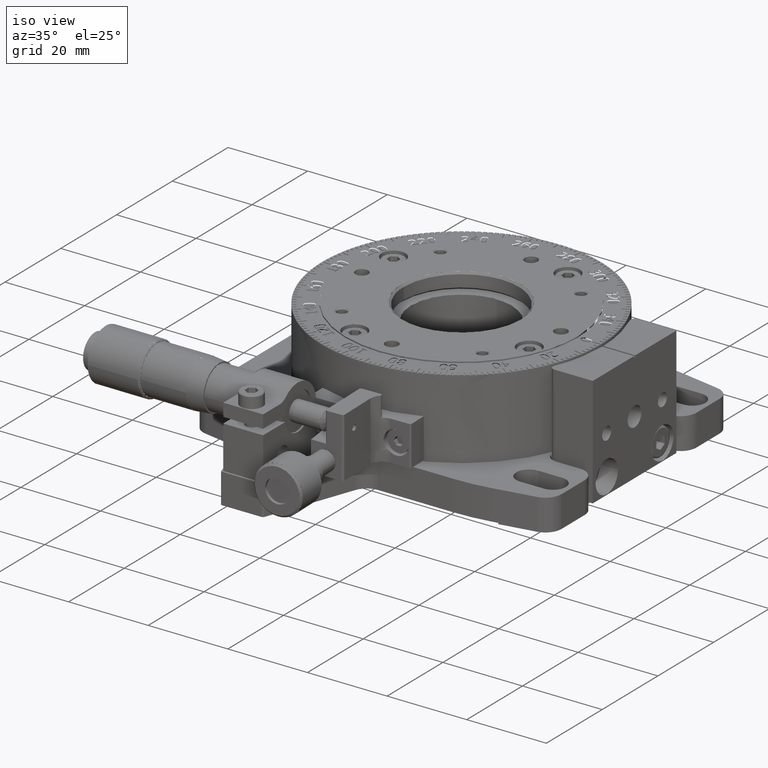
[diagram: clean part render]
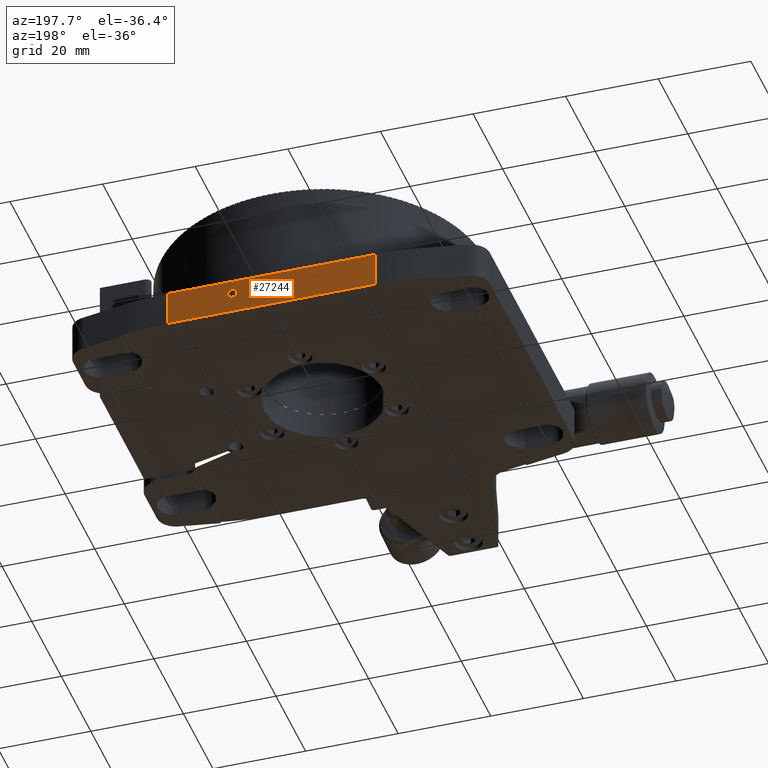
[diagram: tour spotlight — one face highlighted and labeled with its STEP entity id]
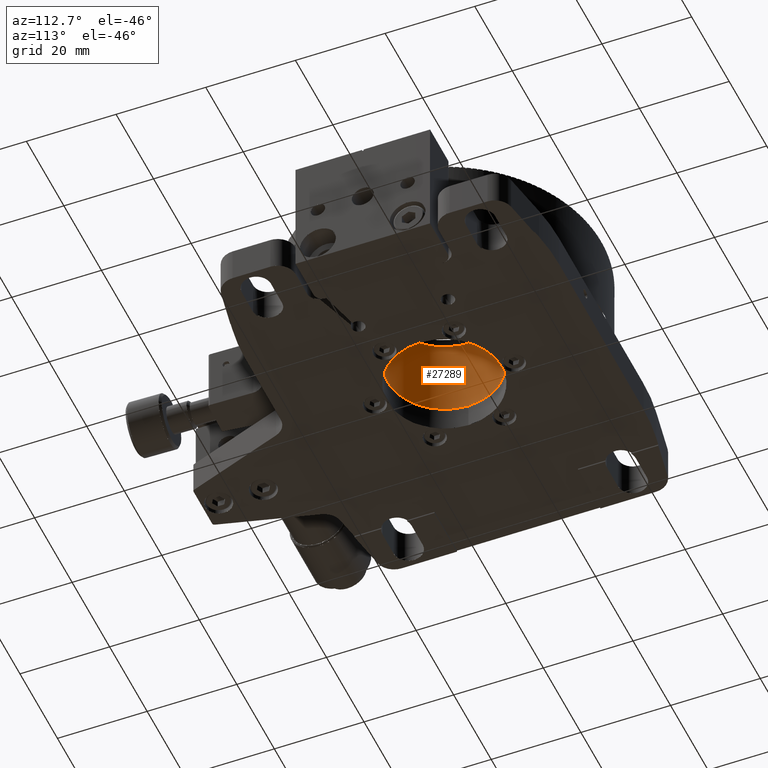
[diagram: tour spotlight — one face highlighted and labeled with its STEP entity id]
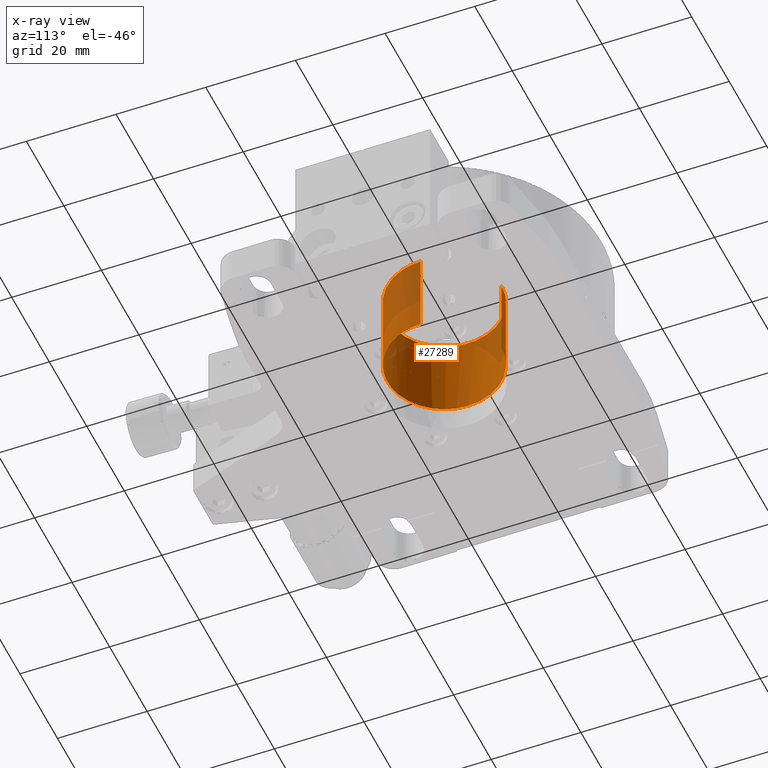
[diagram: x-ray of the same camera — body ghosted, this tour face saturated]
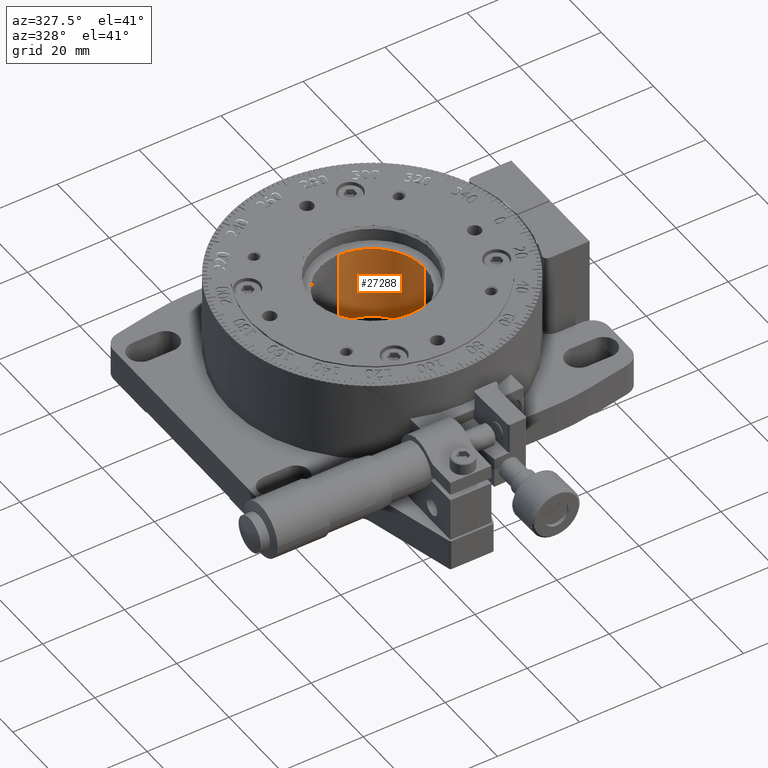
[diagram: tour spotlight — one face highlighted and labeled with its STEP entity id]
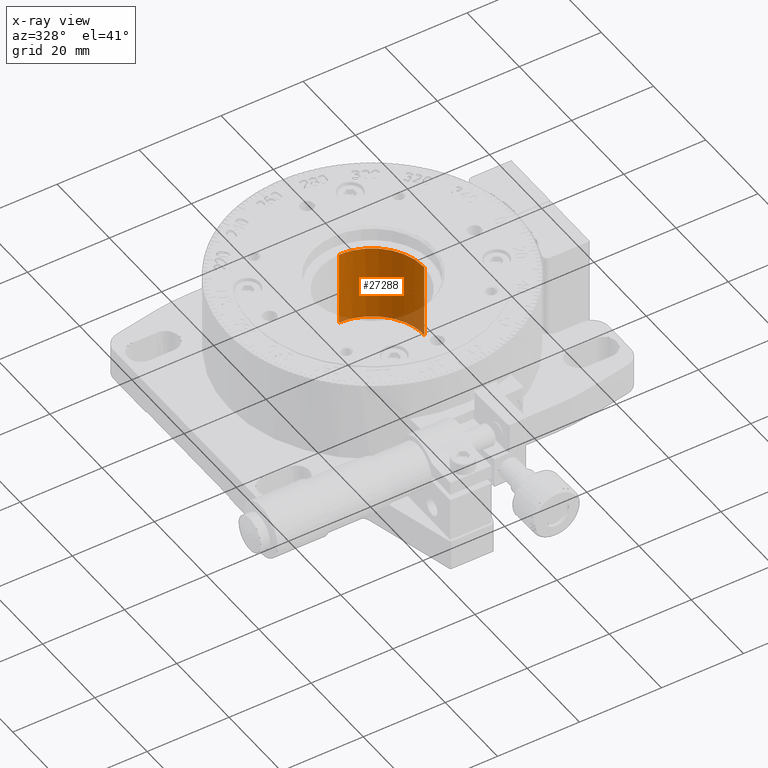
[diagram: x-ray of the same camera — body ghosted, this tour face saturated]
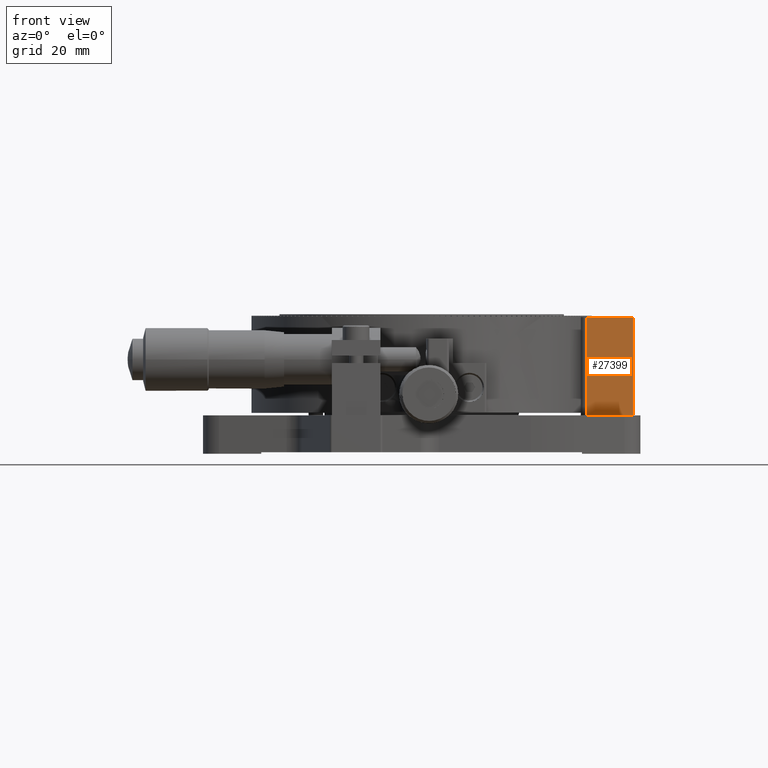
[diagram: tour spotlight — one face highlighted and labeled with its STEP entity id]
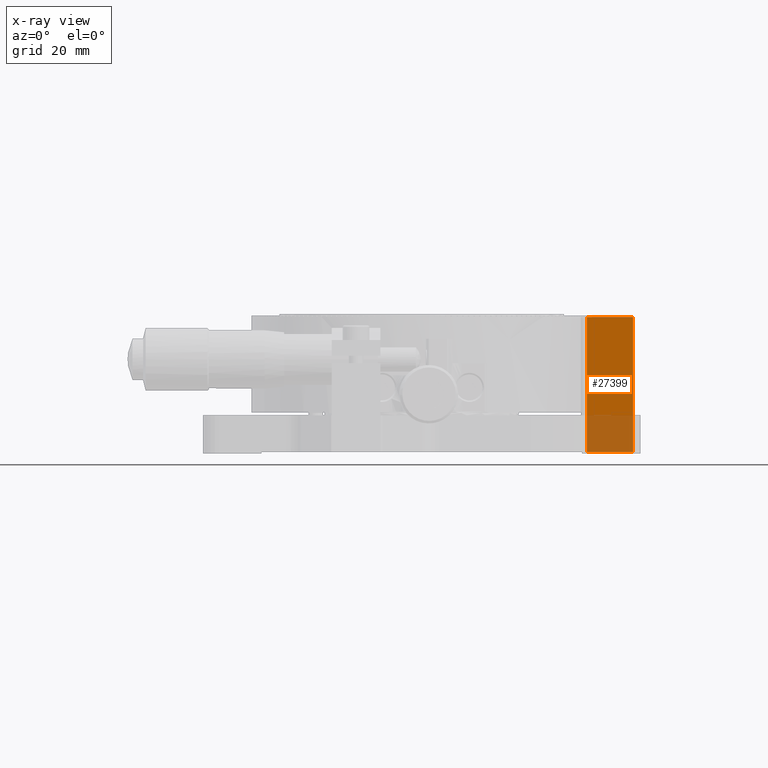
[diagram: x-ray of the same camera — body ghosted, this tour face saturated]
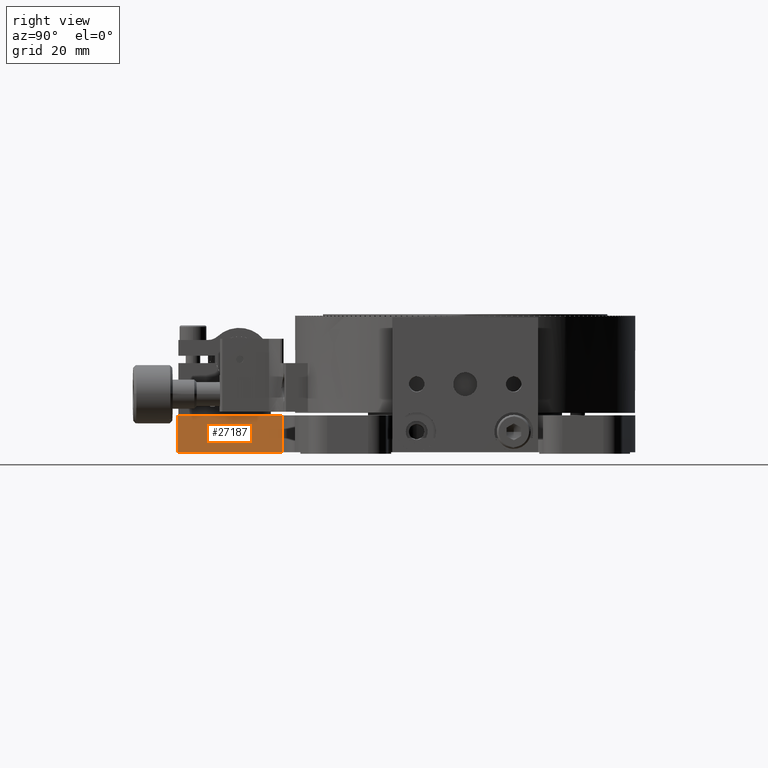
[diagram: tour spotlight — one face highlighted and labeled with its STEP entity id]
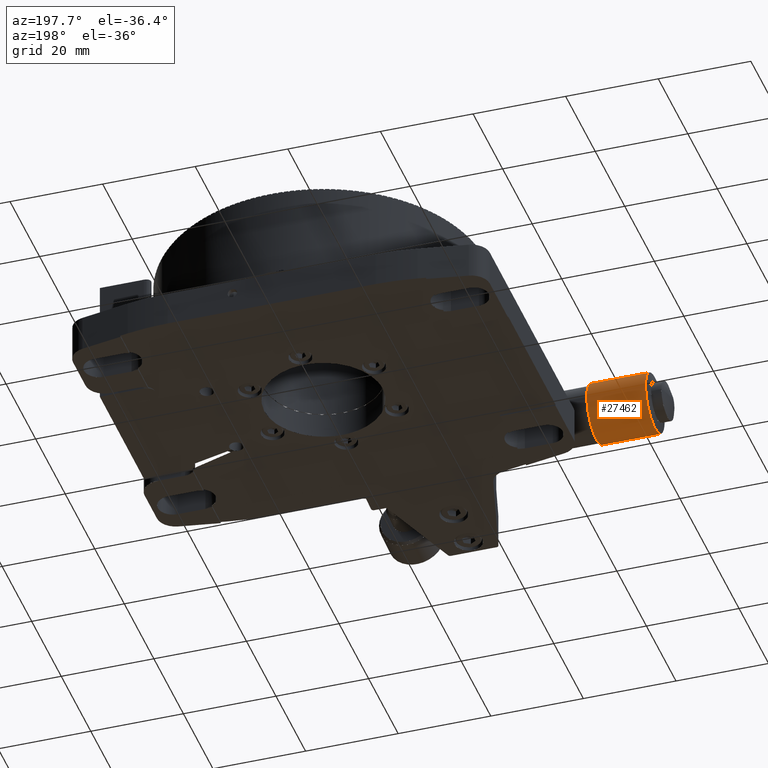
[diagram: tour spotlight — one face highlighted and labeled with its STEP entity id]
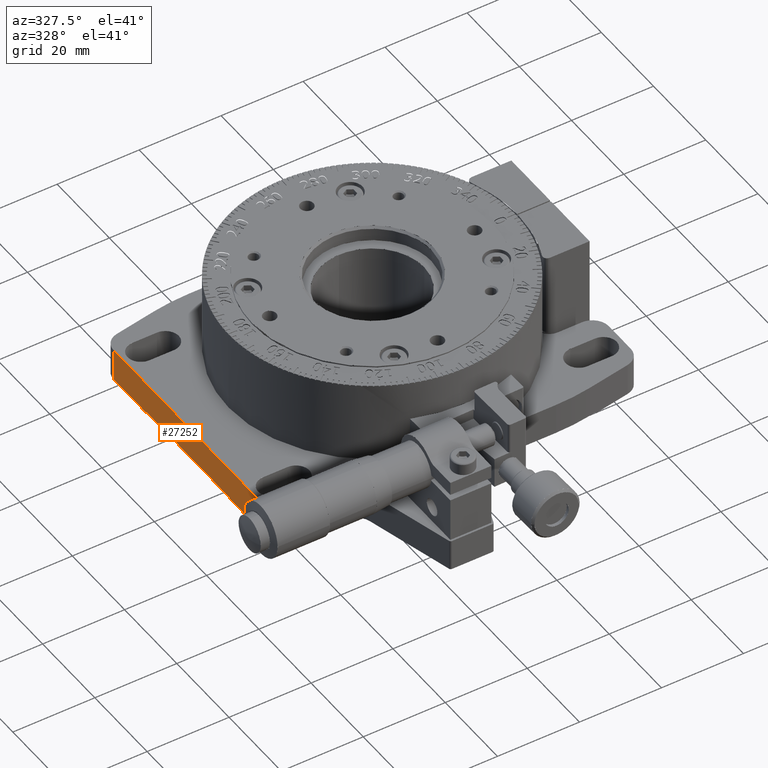
[diagram: tour spotlight — one face highlighted and labeled with its STEP entity id]
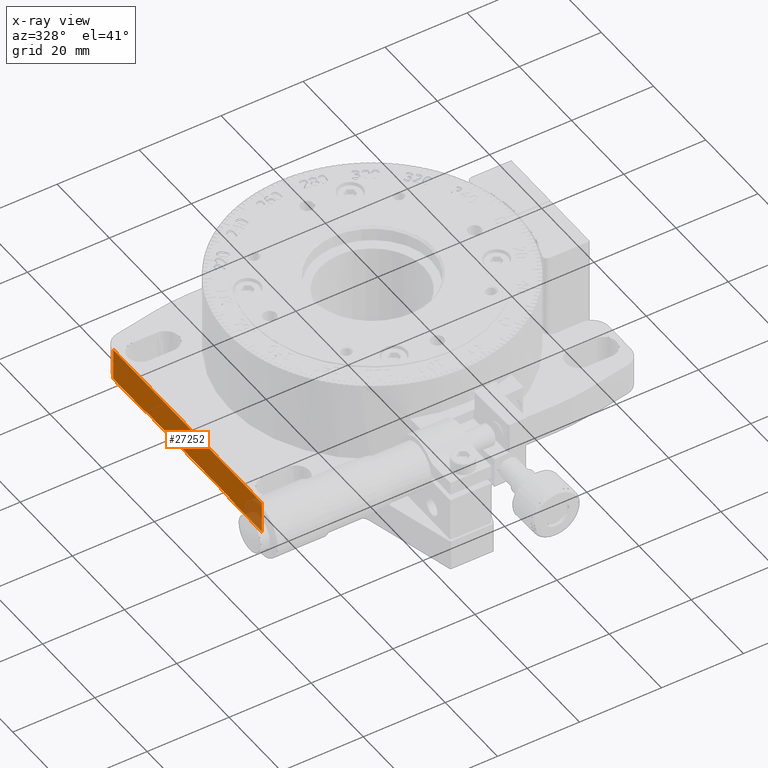
[diagram: x-ray of the same camera — body ghosted, this tour face saturated]
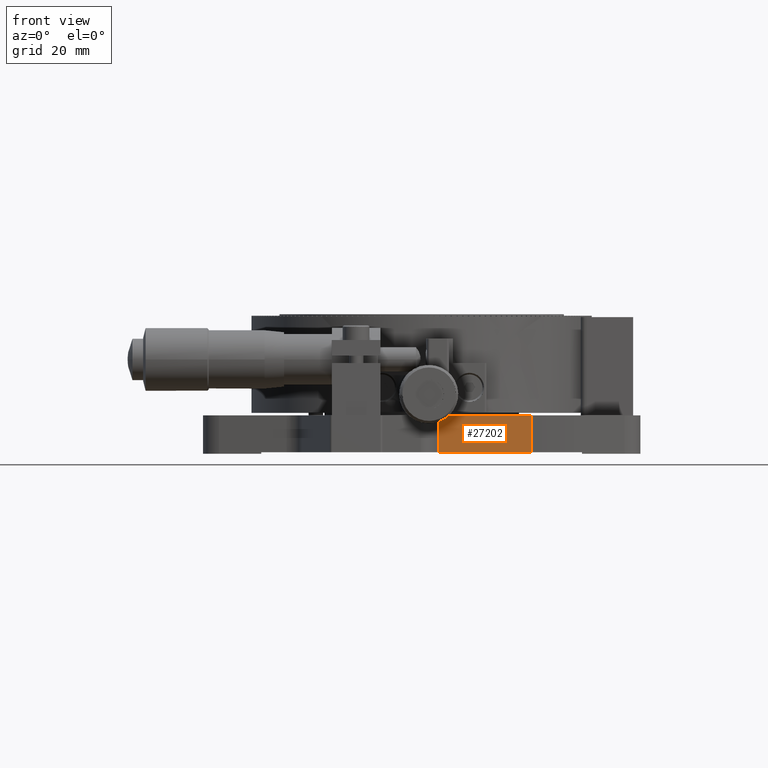
[diagram: tour spotlight — one face highlighted and labeled with its STEP entity id]
A machine part: a face-by-face anatomy tour. The part has 2330 B-rep faces; the first image is the clean iso view, then the 8 largest visible faces are spotlighted one at a time (largest first), each with its STEP entity span.

Face 1 — auxiliary view, entity #27244. In plain terms, the highlighted face is a freeform B-spline surface patch.
Definition (entity closure, byte-faithful):
#589=FACE_BOUND('',#31951,.T.);
#1705=(
BOUNDED_CURVE()
B_SPLINE_CURVE(2,(#148731,#148732,#148733,#148734,#148735),
 .UNSPECIFIED.,.F.,.F.)
B_SPLINE_CURVE_WITH_KNOTS((3,2,3),(0.,1.5707963267949,3.14159265358979),
 .UNSPECIFIED.)
CURVE()
GEOMETRIC_REPRESENTATION_ITEM()
RATIONAL_B_SPLINE_CURVE((1.,0.707106781186548,1.,0.707106781186548,1.))
REPRESENTATION_ITEM('')
);
#1706=(
BOUNDED_CURVE()
B_SPLINE_CURVE(2,(#148736,#148737,#148738,#148739,#148740),
 .UNSPECIFIED.,.F.,.F.)
B_SPLINE_CURVE_WITH_KNOTS((3,2,3),(0.,1.5707963267949,3.14159265358979),
 .UNSPECIFIED.)
CURVE()
GEOMETRIC_REPRESENTATION_ITEM()
RATIONAL_B_SPLINE_CURVE((1.,0.707106781186548,1.,0.707106781186548,1.))
REPRESENTATION_ITEM('')
);
#1707=(
BOUNDED_CURVE()
B_SPLINE_CURVE(2,(#148741,#148742,#148743,#148744,#148745),
 .UNSPECIFIED.,.F.,.F.)
B_SPLINE_CURVE_WITH_KNOTS((3,2,3),(0.,1.5707963267949,3.14159265358979),
 .UNSPECIFIED.)
CURVE()
GEOMETRIC_REPRESENTATION_ITEM()
RATIONAL_B_SPLINE_CURVE((1.,0.707106781186548,1.,0.707106781186548,1.))
REPRESENTATION_ITEM('')
);
#1708=(
BOUNDED_CURVE()
B_SPLINE_CURVE(2,(#148746,#148747,#148748,#148749,#148750),
 .UNSPECIFIED.,.F.,.F.)
B_SPLINE_CURVE_WITH_KNOTS((3,2,3),(0.,1.5707963267949,3.14159265358979),
 .UNSPECIFIED.)
CURVE()
GEOMETRIC_REPRESENTATION_ITEM()
RATIONAL_B_SPLINE_CURVE((1.,0.707106781186548,1.,0.707106781186548,1.))
REPRESENTATION_ITEM('')
);
#27244=ADVANCED_FACE('',(#29574,#589),#129671,.T.);
#29574=FACE_OUTER_BOUND('',#31950,.T.);
#31950=EDGE_LOOP('',(#35771,#35772,#35773,#35774));
#31951=EDGE_LOOP('',(#35775,#35776));
#35771=ORIENTED_EDGE('',*,*,#85625,.T.);
#35772=ORIENTED_EDGE('',*,*,#85626,.T.);
#35773=ORIENTED_EDGE('',*,*,#85627,.T.);
#35774=ORIENTED_EDGE('',*,*,#85628,.T.);
#35775=ORIENTED_EDGE('',*,*,#85629,.T.);
#35776=ORIENTED_EDGE('',*,*,#85630,.T.);
#48445=PCURVE('',#129671,#61119);
#48446=PCURVE('',#129671,#61120);
#48447=PCURVE('',#129671,#61121);
#48448=PCURVE('',#129671,#61122);
#48449=PCURVE('',#129671,#61123);
#48450=PCURVE('',#129671,#61124);
#61119=DEFINITIONAL_REPRESENTATION('',(#98417),#230981);
#61120=DEFINITIONAL_REPRESENTATION('',(#98419),#230981);
#61121=DEFINITIONAL_REPRESENTATION('',(#98421),#230981);
#61122=DEFINITIONAL_REPRESENTATION('',(#98423),#230981);
#61123=DEFINITIONAL_REPRESENTATION('',(#1706),#230981);
#61124=DEFINITIONAL_REPRESENTATION('',(#1708),#230981);
#73525=SURFACE_CURVE('',#98416,(#48445),.PCURVE_S1.);
#73526=SURFACE_CURVE('',#98418,(#48446),.PCURVE_S1.);
#73527=SURFACE_CURVE('',#98420,(#48447),.PCURVE_S1.);
#73528=SURFACE_CURVE('',#98422,(#48448),.PCURVE_S1.);
#73529=SURFACE_CURVE('',#1705,(#48449),.PCURVE_S1.);
#73530=SURFACE_CURVE('',#1707,(#48450),.PCURVE_S1.);
#85625=EDGE_CURVE('',#119070,#119072,#73525,.T.);
#85626=EDGE_CURVE('',#119072,#119073,#73526,.T.);
#85627=EDGE_CURVE('',#119073,#119071,#73527,.T.);
#85628=EDGE_CURVE('',#119071,#119070,#73528,.T.);
#85629=EDGE_CURVE('',#119075,#119074,#73529,.T.);
#85630=EDGE_CURVE('',#119074,#119075,#73530,.T.);
#98416=B_SPLINE_CURVE_WITH_KNOTS('',1,(#148715,#148716),.UNSPECIFIED.,.F.,
 .F.,(2,2),(-44.93994846471,0.),.UNSPECIFIED.);
#98417=B_SPLINE_CURVE_WITH_KNOTS('',1,(#148717,#148718),.UNSPECIFIED.,.F.,
 .F.,(2,2),(-44.93994846471,0.),.UNSPECIFIED.);
#98418=B_SPLINE_CURVE_WITH_KNOTS('',1,(#148719,#148720),.UNSPECIFIED.,.F.,
 .F.,(2,2),(-7.6,0.),.UNSPECIFIED.);
#98419=B_SPLINE_CURVE_WITH_KNOTS('',1,(#148721,#148722),.UNSPECIFIED.,.F.,
 .F.,(2,2),(-7.6,0.),.UNSPECIFIED.);
#98420=B_SPLINE_CURVE_WITH_KNOTS('',1,(#148723,#148724),.UNSPECIFIED.,.F.,
 .F.,(2,2),(-44.93994846471,0.),.UNSPECIFIED.);
#98421=B_SPLINE_CURVE_WITH_KNOTS('',1,(#148725,#148726),.UNSPECIFIED.,.F.,
 .F.,(2,2),(-44.93994846471,0.),.UNSPECIFIED.);
#98422=B_SPLINE_CURVE_WITH_KNOTS('',1,(#148727,#148728),.UNSPECIFIED.,.F.,
 .F.,(2,2),(-7.6,0.),.UNSPECIFIED.);
#98423=B_SPLINE_CURVE_WITH_KNOTS('',1,(#148729,#148730),.UNSPECIFIED.,.F.,
 .F.,(2,2),(-7.6,0.),.UNSPECIFIED.);
#119070=VERTEX_POINT('',#148709);
#119071=VERTEX_POINT('',#148710);
#119072=VERTEX_POINT('',#148711);
#119073=VERTEX_POINT('',#148712);
#119074=VERTEX_POINT('',#148713);
#119075=VERTEX_POINT('',#148714);
#129671=B_SPLINE_SURFACE_WITH_KNOTS('',1,1,((#148705,#148706),(#148707,
#148708)),.UNSPECIFIED.,.F.,.F.,.F.,(2,2),(2,2),(13.000030921174,66.999969078826),
(-0.796000000000001,8.396),.UNSPECIFIED.);
#148705=CARTESIAN_POINT('',(18.0000309211739,4.17488960176714E-13,26.7913598283897));
#148706=CARTESIAN_POINT('',(18.0000309211739,4.17488960176714E-13,17.5993598283897));
#148707=CARTESIAN_POINT('',(71.9999690788259,4.1767631009756E-13,26.7913598283897));
#148708=CARTESIAN_POINT('',(71.9999690788259,4.1767631009756E-13,17.5993598283897));
#148709=CARTESIAN_POINT('',(22.5300257676449,4.17504676753526E-13,25.9953598283897));
#148710=CARTESIAN_POINT('',(22.5300257676449,4.17504676753526E-13,18.3953598283897));
#148711=CARTESIAN_POINT('',(67.4699742323549,4.17660593520748E-13,25.9953598283897));
#148712=CARTESIAN_POINT('',(67.4699742323549,4.17660593520748E-13,18.3953598283897));
#148713=CARTESIAN_POINT('',(52.4999999999999,4.17608655989277E-13,22.9953598283897));
#148714=CARTESIAN_POINT('',(54.4999999999999,4.17615594883181E-13,22.9953598283897));
#148715=CARTESIAN_POINT('',(22.5300257676449,4.17504676753526E-13,25.9953598283897));
#148716=CARTESIAN_POINT('',(67.4699742323549,4.17660593520748E-13,25.9953598283897));
#148717=CARTESIAN_POINT('',(17.530025767645,-6.07168642307347E-29));
#148718=CARTESIAN_POINT('',(62.469974232355,-2.16370528728147E-28));
#148719=CARTESIAN_POINT('',(67.4699742323549,4.17660593520748E-13,25.9953598283897));
#148720=CARTESIAN_POINT('',(67.4699742323549,4.17660593520748E-13,18.3953598283897));
#148721=CARTESIAN_POINT('',(62.469974232355,-2.16370528728147E-28));
#148722=CARTESIAN_POINT('',(62.469974232355,7.6));
#148723=CARTESIAN_POINT('',(67.4699742323549,4.17660593520748E-13,18.3953598283897));
#148724=CARTESIAN_POINT('',(22.5300257676449,4.17504676753526E-13,18.3953598283897));
#148725=CARTESIAN_POINT('',(62.469974232355,7.6));
#148726=CARTESIAN_POINT('',(17.530025767645,7.6));
#148727=CARTESIAN_POINT('',(22.5300257676449,4.17504676753526E-13,18.3953598283897));
#148728=CARTESIAN_POINT('',(22.5300257676449,4.17504676753526E-13,25.9953598283897));
#148729=CARTESIAN_POINT('',(17.530025767645,7.6));
#148730=CARTESIAN_POINT('',(17.530025767645,-6.07168642307347E-29));
#148731=CARTESIAN_POINT('',(54.4999999999999,4.17615594883181E-13,22.9953598283897));
#148732=CARTESIAN_POINT('',(54.4999999999999,4.17615594883181E-13,23.9953598283897));
#148733=CARTESIAN_POINT('',(53.4999999999999,4.17612125436229E-13,23.9953598283897));
#148734=CARTESIAN_POINT('',(52.4999999999999,4.17608655989277E-13,23.9953598283897));
#148735=CARTESIAN_POINT('',(52.4999999999999,4.17608655989277E-13,22.9953598283897));
#148736=CARTESIAN_POINT('',(49.5,3.));
#148737=CARTESIAN_POINT('',(49.5,2.));
#148738=CARTESIAN_POINT('',(48.5,2.));
#148739=CARTESIAN_POINT('',(47.5,2.));
#148740=CARTESIAN_POINT('',(47.5,3.));
#148741=CARTESIAN_POINT('',(52.4999999999999,4.17608655989277E-13,22.9953598283897));
#148742=CARTESIAN_POINT('',(52.4999999999999,4.17608655989277E-13,21.9953598283897));
#148743=CARTESIAN_POINT('',(53.4999999999999,4.17612125436229E-13,21.9953598283897));
#148744=CARTESIAN_POINT('',(54.4999999999999,4.17615594883181E-13,21.9953598283897));
#148745=CARTESIAN_POINT('',(54.4999999999999,4.17615594883181E-13,22.9953598283897));
#148746=CARTESIAN_POINT('',(47.5,3.));
#148747=CARTESIAN_POINT('',(47.5,4.));
#148748=CARTESIAN_POINT('',(48.5,4.));
#148749=CARTESIAN_POINT('',(49.5,4.));
#148750=CARTESIAN_POINT('',(49.5,3.));
#230981=(
GEOMETRIC_REPRESENTATION_CONTEXT(2)
PARAMETRIC_REPRESENTATION_CONTEXT()
REPRESENTATION_CONTEXT('pspace','')
);

Face 2 — auxiliary view, entity #27289. An x-ray twin of the same camera follows (body ghosted, this face saturated) — the face is partly hidden behind the body. In plain terms, the highlighted face is a freeform B-spline surface patch.
Definition (entity closure, byte-faithful):
#285=(
BOUNDED_SURFACE()
B_SPLINE_SURFACE(1,2,((#154473,#154474,#154475,#154476,#154477,#154478,
#154479,#154480,#154481),(#154482,#154483,#154484,#154485,#154486,#154487,
#154488,#154489,#154490)),.UNSPECIFIED.,.F.,.F.,.F.)
B_SPLINE_SURFACE_WITH_KNOTS((2,2),(3,2,2,2,3),(0.,22.272),(0.,1.5707963267949,
3.14159265358979,4.71238898038469,6.28318530717959),.UNSPECIFIED.)
GEOMETRIC_REPRESENTATION_ITEM()
RATIONAL_B_SPLINE_SURFACE(((1.,0.707106781186548,1.,0.707106781186548,1.,
0.707106781186548,1.,0.707106781186548,1.),(1.,0.707106781186548,1.,0.707106781186548,
1.,0.707106781186548,1.,0.707106781186548,1.)))
REPRESENTATION_ITEM('')
SURFACE()
);
#286=(
BOUNDED_SURFACE()
B_SPLINE_SURFACE(1,2,((#154491,#154492,#154493,#154494,#154495,#154496,
#154497,#154498,#154499),(#154500,#154501,#154502,#154503,#154504,#154505,
#154506,#154507,#154508)),.UNSPECIFIED.,.F.,.F.,.F.)
B_SPLINE_SURFACE_WITH_KNOTS((2,2),(3,2,2,2,3),(0.,22.272),(0.,1.5707963267949,
3.14159265358979,4.71238898038469,6.28318530717959),.UNSPECIFIED.)
GEOMETRIC_REPRESENTATION_ITEM()
RATIONAL_B_SPLINE_SURFACE(((1.,0.707106781186548,1.,0.707106781186548,1.,
0.707106781186548,1.,0.707106781186548,1.),(1.,0.707106781186548,1.,0.707106781186548,
1.,0.707106781186548,1.,0.707106781186548,1.)))
REPRESENTATION_ITEM('')
SURFACE()
);
#2168=(
BOUNDED_CURVE()
B_SPLINE_CURVE(2,(#154534,#154535,#154536,#154537,#154538),
 .UNSPECIFIED.,.F.,.F.)
B_SPLINE_CURVE_WITH_KNOTS((3,2,3),(-39.8982267005904,-19.9491133502952,
0.),.UNSPECIFIED.)
CURVE()
GEOMETRIC_REPRESENTATION_ITEM()
RATIONAL_B_SPLINE_CURVE((1.,0.707106781186548,1.,0.707106781186548,1.))
REPRESENTATION_ITEM('')
);
#2169=(
BOUNDED_CURVE()
B_SPLINE_CURVE(2,(#154541,#154542,#154543),.UNSPECIFIED.,.F.,.F.)
B_SPLINE_CURVE_WITH_KNOTS((3,3),(-39.8982267005904,-19.9491133502957),
 .UNSPECIFIED.)
CURVE()
GEOMETRIC_REPRESENTATION_ITEM()
RATIONAL_B_SPLINE_CURVE((1.,0.707106781186548,1.))
REPRESENTATION_ITEM('')
);
#2170=(
BOUNDED_CURVE()
B_SPLINE_CURVE(2,(#154548,#154549,#154550,#154551,#154552,#154553,#154554,
#154555,#154556),.UNSPECIFIED.,.F.,.F.)
B_SPLINE_CURVE_WITH_KNOTS((3,2,2,2,3),(19.9491133502957,34.9109483630169,
49.8727833757382,64.8346183884595,79.7964534011807),.UNSPECIFIED.)
CURVE()
GEOMETRIC_REPRESENTATION_ITEM()
RATIONAL_B_SPLINE_CURVE((1.,0.831469612302545,1.,0.831469612302545,1.,0.831469612302545,
1.,0.831469612302545,1.))
REPRESENTATION_ITEM('')
);
#27289=ADVANCED_FACE('',(#29619),#286,.T.);
#29619=FACE_OUTER_BOUND('',#32001,.T.);
#32001=EDGE_LOOP('',(#36702,#36703,#36704,#36705,#36706));
#36702=ORIENTED_EDGE('',*,*,#86540,.F.);
#36703=ORIENTED_EDGE('',*,*,#86542,.T.);
#36704=ORIENTED_EDGE('',*,*,#86543,.T.);
#36705=ORIENTED_EDGE('',*,*,#86538,.F.);
#36706=ORIENTED_EDGE('',*,*,#86544,.T.);
#49372=PCURVE('',#285,#62046);
#49374=PCURVE('',#285,#62048);
#49376=PCURVE('',#286,#62050);
#49377=PCURVE('',#286,#62051);
#49378=PCURVE('',#286,#62052);
#49379=PCURVE('',#286,#62053);
#49380=PCURVE('',#286,#62054);
#62046=DEFINITIONAL_REPRESENTATION('',(#99796),#230981);
#62048=DEFINITIONAL_REPRESENTATION('',(#99799),#230981);
#62050=DEFINITIONAL_REPRESENTATION('',(#99801),#230981);
#62051=DEFINITIONAL_REPRESENTATION('',(#99802),#230981);
#62052=DEFINITIONAL_REPRESENTATION('',(#99803),#230981);
#62053=DEFINITIONAL_REPRESENTATION('',(#99804),#230981);
#62054=DEFINITIONAL_REPRESENTATION('',(#99805),#230981);
#74438=SURFACE_CURVE('',#99795,(#49372,#49379),.PCURVE_S1.);
#74440=SURFACE_CURVE('',#99798,(#49374,#49376),.PCURVE_S1.);
#74442=SURFACE_CURVE('',#2168,(#49377),.PCURVE_S1.);
#74443=SURFACE_CURVE('',#2169,(#49378),.PCURVE_S1.);
#74444=SURFACE_CURVE('',#2170,(#49380),.PCURVE_S1.);
#86538=EDGE_CURVE('',#119969,#119973,#74438,.T.);
#86540=EDGE_CURVE('',#119972,#119970,#74440,.T.);
#86542=EDGE_CURVE('',#119972,#119971,#74442,.T.);
#86543=EDGE_CURVE('',#119971,#119973,#74443,.T.);
#86544=EDGE_CURVE('',#119969,#119970,#74444,.T.);
#99795=B_SPLINE_CURVE_WITH_KNOTS('',1,(#154514,#154515),.UNSPECIFIED.,.F.,
 .F.,(2,2),(-20.386,-1.886),.UNSPECIFIED.);
#99796=B_SPLINE_CURVE_WITH_KNOTS('',1,(#154516,#154517),.UNSPECIFIED.,.F.,
 .F.,(2,2),(-20.386,-1.886),.UNSPECIFIED.);
#99798=B_SPLINE_CURVE_WITH_KNOTS('',1,(#154523,#154524),.UNSPECIFIED.,.F.,
 .F.,(2,2),(0.,18.5),.UNSPECIFIED.);
#99799=B_SPLINE_CURVE_WITH_KNOTS('',1,(#154525,#154526),.UNSPECIFIED.,.F.,
 .F.,(2,2),(0.,18.5),.UNSPECIFIED.);
#99801=B_SPLINE_CURVE_WITH_KNOTS('',1,(#154532,#154533),.UNSPECIFIED.,.F.,
 .F.,(2,2),(0.,18.5),.UNSPECIFIED.);
#99802=B_SPLINE_CURVE_WITH_KNOTS('',1,(#154539,#154540),.UNSPECIFIED.,.F.,
 .F.,(2,2),(-39.8982267005904,0.),.UNSPECIFIED.);
#99803=B_SPLINE_CURVE_WITH_KNOTS('',1,(#154544,#154545),.UNSPECIFIED.,.F.,
 .F.,(2,2),(-39.8982267005904,-19.9491133502957),.UNSPECIFIED.);
#99804=B_SPLINE_CURVE_WITH_KNOTS('',1,(#154546,#154547),.UNSPECIFIED.,.F.,
 .F.,(2,2),(-20.386,-1.886),.UNSPECIFIED.);
#99805=B_SPLINE_CURVE_WITH_KNOTS('',1,(#154557,#154558),.UNSPECIFIED.,.F.,
 .F.,(2,2),(19.9491133502957,79.7964534011807),.UNSPECIFIED.);
#119969=VERTEX_POINT('',#154509);
#119970=VERTEX_POINT('',#154510);
#119971=VERTEX_POINT('',#154511);
#119972=VERTEX_POINT('',#154512);
#119973=VERTEX_POINT('',#154513);
#154473=CARTESIAN_POINT('',(44.9999999999998,-22.2999999999997,22.1093598283897));
#154474=CARTESIAN_POINT('',(32.2999999999998,-22.2999999999997,22.1093598283897));
#154475=CARTESIAN_POINT('',(32.2999999999998,-34.9999999999997,22.1093598283897));
#154476=CARTESIAN_POINT('',(32.2999999999998,-47.6999999999997,22.1093598283897));
#154477=CARTESIAN_POINT('',(44.9999999999998,-47.6999999999997,22.1093598283897));
#154478=CARTESIAN_POINT('',(57.6999999999998,-47.6999999999997,22.1093598283897));
#154479=CARTESIAN_POINT('',(57.6999999999998,-34.9999999999997,22.1093598283897));
#154480=CARTESIAN_POINT('',(57.6999999999998,-22.2999999999997,22.1093598283897));
#154481=CARTESIAN_POINT('',(44.9999999999998,-22.2999999999997,22.1093598283897));
#154482=CARTESIAN_POINT('',(44.9999999999998,-22.2999999999997,44.3813598283897));
#154483=CARTESIAN_POINT('',(32.2999999999998,-22.2999999999997,44.3813598283897));
#154484=CARTESIAN_POINT('',(32.2999999999998,-34.9999999999997,44.3813598283897));
#154485=CARTESIAN_POINT('',(32.2999999999998,-47.6999999999997,44.3813598283897));
#154486=CARTESIAN_POINT('',(44.9999999999998,-47.6999999999997,44.3813598283897));
#154487=CARTESIAN_POINT('',(57.6999999999998,-47.6999999999997,44.3813598283897));
#154488=CARTESIAN_POINT('',(57.6999999999998,-34.9999999999997,44.3813598283897));
#154489=CARTESIAN_POINT('',(57.6999999999998,-22.2999999999997,44.3813598283897));
#154490=CARTESIAN_POINT('',(44.9999999999998,-22.2999999999997,44.3813598283897));
#154491=CARTESIAN_POINT('',(44.9999999999998,-22.2999999999997,22.1093598283897));
#154492=CARTESIAN_POINT('',(32.2999999999998,-22.2999999999997,22.1093598283897));
#154493=CARTESIAN_POINT('',(32.2999999999998,-34.9999999999997,22.1093598283897));
#154494=CARTESIAN_POINT('',(32.2999999999998,-47.6999999999997,22.1093598283897));
#154495=CARTESIAN_POINT('',(44.9999999999998,-47.6999999999997,22.1093598283897));
#154496=CARTESIAN_POINT('',(57.6999999999998,-47.6999999999997,22.1093598283897));
#154497=CARTESIAN_POINT('',(57.6999999999998,-34.9999999999997,22.1093598283897));
#154498=CARTESIAN_POINT('',(57.6999999999998,-22.2999999999997,22.1093598283897));
#154499=CARTESIAN_POINT('',(44.9999999999998,-22.2999999999997,22.1093598283897));
#154500=CARTESIAN_POINT('',(44.9999999999998,-22.2999999999997,44.3813598283897));
#154501=CARTESIAN_POINT('',(32.2999999999998,-22.2999999999997,44.3813598283897));
#154502=CARTESIAN_POINT('',(32.2999999999998,-34.9999999999997,44.3813598283897));
#154503=CARTESIAN_POINT('',(32.2999999999998,-47.6999999999997,44.3813598283897));
#154504=CARTESIAN_POINT('',(44.9999999999998,-47.6999999999997,44.3813598283897));
#154505=CARTESIAN_POINT('',(57.6999999999998,-47.6999999999997,44.3813598283897));
#154506=CARTESIAN_POINT('',(57.6999999999998,-34.9999999999997,44.3813598283897));
#154507=CARTESIAN_POINT('',(57.6999999999998,-22.2999999999997,44.3813598283897));
#154508=CARTESIAN_POINT('',(44.9999999999998,-22.2999999999997,44.3813598283897));
#154509=CARTESIAN_POINT('',(44.9999999999998,-22.2999999999997,42.4953598283897));
#154510=CARTESIAN_POINT('',(57.6999999999998,-34.9999999999997,42.4953598283897));
#154511=CARTESIAN_POINT('',(32.2999999999998,-34.9999999999997,23.9953598283897));
#154512=CARTESIAN_POINT('',(57.6999999999998,-34.9999999999997,23.9953598283897));
#154513=CARTESIAN_POINT('',(44.9999999999998,-22.2999999999997,23.9953598283897));
#154514=CARTESIAN_POINT('',(44.9999999999998,-22.2999999999997,42.4953598283897));
#154515=CARTESIAN_POINT('',(44.9999999999998,-22.2999999999997,23.9953598283897));
#154516=CARTESIAN_POINT('',(20.386,6.28318530717959));
#154517=CARTESIAN_POINT('',(1.886,6.28318530717959));
#154523=CARTESIAN_POINT('',(57.6999999999998,-34.9999999999997,23.9953598283897));
#154524=CARTESIAN_POINT('',(57.6999999999998,-34.9999999999997,42.4953598283897));
#154525=CARTESIAN_POINT('',(1.886,4.71238898038469));
#154526=CARTESIAN_POINT('',(20.386,4.71238898038469));
#154532=CARTESIAN_POINT('',(1.886,4.71238898038469));
#154533=CARTESIAN_POINT('',(20.386,4.71238898038469));
#154534=CARTESIAN_POINT('',(57.6999999999998,-34.9999999999997,23.9953598283897));
#154535=CARTESIAN_POINT('',(57.6999999999998,-47.6999999999997,23.9953598283897));
#154536=CARTESIAN_POINT('',(44.9999999999998,-47.6999999999997,23.9953598283897));
#154537=CARTESIAN_POINT('',(32.2999999999998,-47.6999999999997,23.9953598283897));
#154538=CARTESIAN_POINT('',(32.2999999999998,-34.9999999999997,23.9953598283897));
#154539=CARTESIAN_POINT('',(1.886,4.71238898038469));
#154540=CARTESIAN_POINT('',(1.886,1.5707963267949));
#154541=CARTESIAN_POINT('',(32.2999999999998,-34.9999999999997,23.9953598283897));
#154542=CARTESIAN_POINT('',(32.2999999999998,-22.2999999999997,23.9953598283897));
#154543=CARTESIAN_POINT('',(44.9999999999998,-22.2999999999997,23.9953598283897));
#154544=CARTESIAN_POINT('',(1.886,1.5707963267949));
#154545=CARTESIAN_POINT('',(1.886,0.));
#154546=CARTESIAN_POINT('',(20.386,0.));
#154547=CARTESIAN_POINT('',(1.886,0.));
#154548=CARTESIAN_POINT('',(44.9999999999998,-22.2999999999997,42.4953598283897));
#154549=CARTESIAN_POINT('',(36.5141312984247,-22.2999999999997,42.4953598283897));
#154550=CARTESIAN_POINT('',(33.2667299371065,-30.1399204089631,42.4953598283897));
#154551=CARTESIAN_POINT('',(30.0193285757882,-37.9798408179264,42.4953598283897));
#154552=CARTESIAN_POINT('',(36.0197438789306,-43.9802561210688,42.4953598283897));
#154553=CARTESIAN_POINT('',(42.0201591820731,-49.9806714242113,42.4953598283898));
#154554=CARTESIAN_POINT('',(49.8600795910364,-46.733270062893,42.4953598283897));
#154555=CARTESIAN_POINT('',(57.6999999999998,-43.4858687015748,42.4953598283897));
#154556=CARTESIAN_POINT('',(57.6999999999998,-34.9999999999997,42.4953598283897));
#154557=CARTESIAN_POINT('',(20.386,0.));
#154558=CARTESIAN_POINT('',(20.386,4.71238898038469));
#230981=(
GEOMETRIC_REPRESENTATION_CONTEXT(2)
PARAMETRIC_REPRESENTATION_CONTEXT()
REPRESENTATION_CONTEXT('pspace','')
);

Face 3 — auxiliary view, entity #27288. An x-ray twin of the same camera follows (body ghosted, this face saturated) — the face is partly hidden behind the body. In plain terms, the highlighted face is a freeform B-spline surface patch.
Definition (entity closure, byte-faithful):
#285=(
BOUNDED_SURFACE()
B_SPLINE_SURFACE(1,2,((#154473,#154474,#154475,#154476,#154477,#154478,
#154479,#154480,#154481),(#154482,#154483,#154484,#154485,#154486,#154487,
#154488,#154489,#154490)),.UNSPECIFIED.,.F.,.F.,.F.)
B_SPLINE_SURFACE_WITH_KNOTS((2,2),(3,2,2,2,3),(0.,22.272),(0.,1.5707963267949,
3.14159265358979,4.71238898038469,6.28318530717959),.UNSPECIFIED.)
GEOMETRIC_REPRESENTATION_ITEM()
RATIONAL_B_SPLINE_SURFACE(((1.,0.707106781186548,1.,0.707106781186548,1.,
0.707106781186548,1.,0.707106781186548,1.),(1.,0.707106781186548,1.,0.707106781186548,
1.,0.707106781186548,1.,0.707106781186548,1.)))
REPRESENTATION_ITEM('')
SURFACE()
);
#286=(
BOUNDED_SURFACE()
B_SPLINE_SURFACE(1,2,((#154491,#154492,#154493,#154494,#154495,#154496,
#154497,#154498,#154499),(#154500,#154501,#154502,#154503,#154504,#154505,
#154506,#154507,#154508)),.UNSPECIFIED.,.F.,.F.,.F.)
B_SPLINE_SURFACE_WITH_KNOTS((2,2),(3,2,2,2,3),(0.,22.272),(0.,1.5707963267949,
3.14159265358979,4.71238898038469,6.28318530717959),.UNSPECIFIED.)
GEOMETRIC_REPRESENTATION_ITEM()
RATIONAL_B_SPLINE_SURFACE(((1.,0.707106781186548,1.,0.707106781186548,1.,
0.707106781186548,1.,0.707106781186548,1.),(1.,0.707106781186548,1.,0.707106781186548,
1.,0.707106781186548,1.,0.707106781186548,1.)))
REPRESENTATION_ITEM('')
SURFACE()
);
#2166=(
BOUNDED_CURVE()
B_SPLINE_CURVE(2,(#154518,#154519,#154520),.UNSPECIFIED.,.F.,.F.)
B_SPLINE_CURVE_WITH_KNOTS((3,3),(-19.9491133502957,0.),.UNSPECIFIED.)
CURVE()
GEOMETRIC_REPRESENTATION_ITEM()
RATIONAL_B_SPLINE_CURVE((1.,0.707106781186548,1.))
REPRESENTATION_ITEM('')
);
#2167=(
BOUNDED_CURVE()
B_SPLINE_CURVE(2,(#154527,#154528,#154529),.UNSPECIFIED.,.F.,.F.)
B_SPLINE_CURVE_WITH_KNOTS((3,3),(0.,19.9491133502957),.UNSPECIFIED.)
CURVE()
GEOMETRIC_REPRESENTATION_ITEM()
RATIONAL_B_SPLINE_CURVE((1.,0.707106781186548,1.))
REPRESENTATION_ITEM('')
);
#27288=ADVANCED_FACE('',(#29618),#285,.T.);
#29618=FACE_OUTER_BOUND('',#32000,.T.);
#32000=EDGE_LOOP('',(#36698,#36699,#36700,#36701));
#36698=ORIENTED_EDGE('',*,*,#86538,.T.);
#36699=ORIENTED_EDGE('',*,*,#86539,.T.);
#36700=ORIENTED_EDGE('',*,*,#86540,.T.);
#36701=ORIENTED_EDGE('',*,*,#86541,.T.);
#49372=PCURVE('',#285,#62046);
#49373=PCURVE('',#285,#62047);
#49374=PCURVE('',#285,#62048);
#49375=PCURVE('',#285,#62049);
#49376=PCURVE('',#286,#62050);
#49379=PCURVE('',#286,#62053);
#62046=DEFINITIONAL_REPRESENTATION('',(#99796),#230981);
#62047=DEFINITIONAL_REPRESENTATION('',(#99797),#230981);
#62048=DEFINITIONAL_REPRESENTATION('',(#99799),#230981);
#62049=DEFINITIONAL_REPRESENTATION('',(#99800),#230981);
#62050=DEFINITIONAL_REPRESENTATION('',(#99801),#230981);
#62053=DEFINITIONAL_REPRESENTATION('',(#99804),#230981);
#74438=SURFACE_CURVE('',#99795,(#49372,#49379),.PCURVE_S1.);
#74439=SURFACE_CURVE('',#2166,(#49373),.PCURVE_S1.);
#74440=SURFACE_CURVE('',#99798,(#49374,#49376),.PCURVE_S1.);
#74441=SURFACE_CURVE('',#2167,(#49375),.PCURVE_S1.);
#86538=EDGE_CURVE('',#119969,#119973,#74438,.T.);
#86539=EDGE_CURVE('',#119973,#119972,#74439,.T.);
#86540=EDGE_CURVE('',#119972,#119970,#74440,.T.);
#86541=EDGE_CURVE('',#119970,#119969,#74441,.T.);
#99795=B_SPLINE_CURVE_WITH_KNOTS('',1,(#154514,#154515),.UNSPECIFIED.,.F.,
 .F.,(2,2),(-20.386,-1.886),.UNSPECIFIED.);
#99796=B_SPLINE_CURVE_WITH_KNOTS('',1,(#154516,#154517),.UNSPECIFIED.,.F.,
 .F.,(2,2),(-20.386,-1.886),.UNSPECIFIED.);
#99797=B_SPLINE_CURVE_WITH_KNOTS('',1,(#154521,#154522),.UNSPECIFIED.,.F.,
 .F.,(2,2),(-19.9491133502957,0.),.UNSPECIFIED.);
#99798=B_SPLINE_CURVE_WITH_KNOTS('',1,(#154523,#154524),.UNSPECIFIED.,.F.,
 .F.,(2,2),(0.,18.5),.UNSPECIFIED.);
#99799=B_SPLINE_CURVE_WITH_KNOTS('',1,(#154525,#154526),.UNSPECIFIED.,.F.,
 .F.,(2,2),(0.,18.5),.UNSPECIFIED.);
#99800=B_SPLINE_CURVE_WITH_KNOTS('',1,(#154530,#154531),.UNSPECIFIED.,.F.,
 .F.,(2,2),(0.,19.9491133502957),.UNSPECIFIED.);
#99801=B_SPLINE_CURVE_WITH_KNOTS('',1,(#154532,#154533),.UNSPECIFIED.,.F.,
 .F.,(2,2),(0.,18.5),.UNSPECIFIED.);
#99804=B_SPLINE_CURVE_WITH_KNOTS('',1,(#154546,#154547),.UNSPECIFIED.,.F.,
 .F.,(2,2),(-20.386,-1.886),.UNSPECIFIED.);
#119969=VERTEX_POINT('',#154509);
#119970=VERTEX_POINT('',#154510);
#119972=VERTEX_POINT('',#154512);
#119973=VERTEX_POINT('',#154513);
#154473=CARTESIAN_POINT('',(44.9999999999998,-22.2999999999997,22.1093598283897));
#154474=CARTESIAN_POINT('',(32.2999999999998,-22.2999999999997,22.1093598283897));
#154475=CARTESIAN_POINT('',(32.2999999999998,-34.9999999999997,22.1093598283897));
#154476=CARTESIAN_POINT('',(32.2999999999998,-47.6999999999997,22.1093598283897));
#154477=CARTESIAN_POINT('',(44.9999999999998,-47.6999999999997,22.1093598283897));
#154478=CARTESIAN_POINT('',(57.6999999999998,-47.6999999999997,22.1093598283897));
#154479=CARTESIAN_POINT('',(57.6999999999998,-34.9999999999997,22.1093598283897));
#154480=CARTESIAN_POINT('',(57.6999999999998,-22.2999999999997,22.1093598283897));
#154481=CARTESIAN_POINT('',(44.9999999999998,-22.2999999999997,22.1093598283897));
#154482=CARTESIAN_POINT('',(44.9999999999998,-22.2999999999997,44.3813598283897));
#154483=CARTESIAN_POINT('',(32.2999999999998,-22.2999999999997,44.3813598283897));
#154484=CARTESIAN_POINT('',(32.2999999999998,-34.9999999999997,44.3813598283897));
#154485=CARTESIAN_POINT('',(32.2999999999998,-47.6999999999997,44.3813598283897));
#154486=CARTESIAN_POINT('',(44.9999999999998,-47.6999999999997,44.3813598283897));
#154487=CARTESIAN_POINT('',(57.6999999999998,-47.6999999999997,44.3813598283897));
#154488=CARTESIAN_POINT('',(57.6999999999998,-34.9999999999997,44.3813598283897));
#154489=CARTESIAN_POINT('',(57.6999999999998,-22.2999999999997,44.3813598283897));
#154490=CARTESIAN_POINT('',(44.9999999999998,-22.2999999999997,44.3813598283897));
#154491=CARTESIAN_POINT('',(44.9999999999998,-22.2999999999997,22.1093598283897));
#154492=CARTESIAN_POINT('',(32.2999999999998,-22.2999999999997,22.1093598283897));
#154493=CARTESIAN_POINT('',(32.2999999999998,-34.9999999999997,22.1093598283897));
#154494=CARTESIAN_POINT('',(32.2999999999998,-47.6999999999997,22.1093598283897));
#154495=CARTESIAN_POINT('',(44.9999999999998,-47.6999999999997,22.1093598283897));
#154496=CARTESIAN_POINT('',(57.6999999999998,-47.6999999999997,22.1093598283897));
#154497=CARTESIAN_POINT('',(57.6999999999998,-34.9999999999997,22.1093598283897));
#154498=CARTESIAN_POINT('',(57.6999999999998,-22.2999999999997,22.1093598283897));
#154499=CARTESIAN_POINT('',(44.9999999999998,-22.2999999999997,22.1093598283897));
#154500=CARTESIAN_POINT('',(44.9999999999998,-22.2999999999997,44.3813598283897));
#154501=CARTESIAN_POINT('',(32.2999999999998,-22.2999999999997,44.3813598283897));
#154502=CARTESIAN_POINT('',(32.2999999999998,-34.9999999999997,44.3813598283897));
#154503=CARTESIAN_POINT('',(32.2999999999998,-47.6999999999997,44.3813598283897));
#154504=CARTESIAN_POINT('',(44.9999999999998,-47.6999999999997,44.3813598283897));
#154505=CARTESIAN_POINT('',(57.6999999999998,-47.6999999999997,44.3813598283897));
#154506=CARTESIAN_POINT('',(57.6999999999998,-34.9999999999997,44.3813598283897));
#154507=CARTESIAN_POINT('',(57.6999999999998,-22.2999999999997,44.3813598283897));
#154508=CARTESIAN_POINT('',(44.9999999999998,-22.2999999999997,44.3813598283897));
#154509=CARTESIAN_POINT('',(44.9999999999998,-22.2999999999997,42.4953598283897));
#154510=CARTESIAN_POINT('',(57.6999999999998,-34.9999999999997,42.4953598283897));
#154512=CARTESIAN_POINT('',(57.6999999999998,-34.9999999999997,23.9953598283897));
#154513=CARTESIAN_POINT('',(44.9999999999998,-22.2999999999997,23.9953598283897));
#154514=CARTESIAN_POINT('',(44.9999999999998,-22.2999999999997,42.4953598283897));
#154515=CARTESIAN_POINT('',(44.9999999999998,-22.2999999999997,23.9953598283897));
#154516=CARTESIAN_POINT('',(20.386,6.28318530717959));
#154517=CARTESIAN_POINT('',(1.886,6.28318530717959));
#154518=CARTESIAN_POINT('',(44.9999999999998,-22.2999999999997,23.9953598283897));
#154519=CARTESIAN_POINT('',(57.6999999999998,-22.2999999999997,23.9953598283897));
#154520=CARTESIAN_POINT('',(57.6999999999998,-34.9999999999997,23.9953598283897));
#154521=CARTESIAN_POINT('',(1.886,6.28318530717959));
#154522=CARTESIAN_POINT('',(1.886,4.71238898038469));
#154523=CARTESIAN_POINT('',(57.6999999999998,-34.9999999999997,23.9953598283897));
#154524=CARTESIAN_POINT('',(57.6999999999998,-34.9999999999997,42.4953598283897));
#154525=CARTESIAN_POINT('',(1.886,4.71238898038469));
#154526=CARTESIAN_POINT('',(20.386,4.71238898038469));
#154527=CARTESIAN_POINT('',(57.6999999999998,-34.9999999999997,42.4953598283897));
#154528=CARTESIAN_POINT('',(57.6999999999998,-22.2999999999997,42.4953598283897));
#154529=CARTESIAN_POINT('',(44.9999999999998,-22.2999999999997,42.4953598283897));
#154530=CARTESIAN_POINT('',(20.386,4.71238898038469));
#154531=CARTESIAN_POINT('',(20.386,6.28318530717959));
#154532=CARTESIAN_POINT('',(1.886,4.71238898038469));
#154533=CARTESIAN_POINT('',(20.386,4.71238898038469));
#154546=CARTESIAN_POINT('',(20.386,0.));
#154547=CARTESIAN_POINT('',(1.886,0.));
#230981=(
GEOMETRIC_REPRESENTATION_CONTEXT(2)
PARAMETRIC_REPRESENTATION_CONTEXT()
REPRESENTATION_CONTEXT('pspace','')
);

Face 4 — front view, entity #27399. An x-ray twin of the same camera follows (body ghosted, this face saturated) — the face is partly hidden behind the body. In plain terms, the highlighted face is a freeform B-spline surface patch.
Definition (entity closure, byte-faithful):
#27399=ADVANCED_FACE('',(#29729),#129707,.T.);
#29729=FACE_OUTER_BOUND('',#32134,.T.);
#32134=EDGE_LOOP('',(#37197,#37198,#37199,#37200));
#37197=ORIENTED_EDGE('',*,*,#86919,.T.);
#37198=ORIENTED_EDGE('',*,*,#86920,.T.);
#37199=ORIENTED_EDGE('',*,*,#86921,.T.);
#37200=ORIENTED_EDGE('',*,*,#86922,.T.);
#49871=PCURVE('',#129707,#62545);
#49872=PCURVE('',#129707,#62546);
#49873=PCURVE('',#129707,#62547);
#49874=PCURVE('',#129707,#62548);
#62545=DEFINITIONAL_REPRESENTATION('',(#100323),#230981);
#62546=DEFINITIONAL_REPRESENTATION('',(#100325),#230981);
#62547=DEFINITIONAL_REPRESENTATION('',(#100327),#230981);
#62548=DEFINITIONAL_REPRESENTATION('',(#100329),#230981);
#74819=SURFACE_CURVE('',#100322,(#49871),.PCURVE_S1.);
#74820=SURFACE_CURVE('',#100324,(#49872),.PCURVE_S1.);
#74821=SURFACE_CURVE('',#100326,(#49873),.PCURVE_S1.);
#74822=SURFACE_CURVE('',#100328,(#49874),.PCURVE_S1.);
#86919=EDGE_CURVE('',#120266,#120267,#74819,.T.);
#86920=EDGE_CURVE('',#120267,#120268,#74820,.T.);
#86921=EDGE_CURVE('',#120268,#120269,#74821,.T.);
#86922=EDGE_CURVE('',#120269,#120266,#74822,.T.);
#100322=B_SPLINE_CURVE_WITH_KNOTS('',1,(#160937,#160938),.UNSPECIFIED.,
 .F.,.F.,(2,2),(0.,9.4996337360504),.UNSPECIFIED.);
#100323=B_SPLINE_CURVE_WITH_KNOTS('',1,(#160939,#160940),.UNSPECIFIED.,
 .F.,.F.,(2,2),(0.,9.4996337360504),.UNSPECIFIED.);
#100324=B_SPLINE_CURVE_WITH_KNOTS('',1,(#160941,#160942),.UNSPECIFIED.,
 .F.,.F.,(2,2),(-27.8,0.),.UNSPECIFIED.);
#100325=B_SPLINE_CURVE_WITH_KNOTS('',1,(#160943,#160944),.UNSPECIFIED.,
 .F.,.F.,(2,2),(-27.8,0.),.UNSPECIFIED.);
#100326=B_SPLINE_CURVE_WITH_KNOTS('',1,(#160945,#160946),.UNSPECIFIED.,
 .F.,.F.,(2,2),(0.,9.4996337360504),.UNSPECIFIED.);
#100327=B_SPLINE_CURVE_WITH_KNOTS('',1,(#160947,#160948),.UNSPECIFIED.,
 .F.,.F.,(2,2),(0.,9.4996337360504),.UNSPECIFIED.);
#100328=B_SPLINE_CURVE_WITH_KNOTS('',1,(#160949,#160950),.UNSPECIFIED.,
 .F.,.F.,(2,2),(0.,27.8),.UNSPECIFIED.);
#100329=B_SPLINE_CURVE_WITH_KNOTS('',1,(#160951,#160952),.UNSPECIFIED.,
 .F.,.F.,(2,2),(0.,27.8),.UNSPECIFIED.);
#120266=VERTEX_POINT('',#160933);
#120267=VERTEX_POINT('',#160934);
#120268=VERTEX_POINT('',#160935);
#120269=VERTEX_POINT('',#160936);
#129707=B_SPLINE_SURFACE_WITH_KNOTS('',1,1,((#160929,#160930),(#160931,
#160932)),.UNSPECIFIED.,.F.,.F.,.F.,(2,2),(2,2),(-23.016,10.416),(-10.4855971096554,
0.985963373605041),.UNSPECIFIED.);
#160929=CARTESIAN_POINT('',(78.0140366263946,-49.9999999999999,49.0113598283897));
#160930=CARTESIAN_POINT('',(89.485597109655,-49.9999999999999,49.0113598283897));
#160931=CARTESIAN_POINT('',(78.0140366263946,-49.9999999999999,15.5793598283897));
#160932=CARTESIAN_POINT('',(89.485597109655,-49.9999999999999,15.5793598283897));
#160933=CARTESIAN_POINT('',(88.49963373605,-49.9999999999999,46.1953598283897));
#160934=CARTESIAN_POINT('',(78.9999999999996,-49.9999999999999,46.1953598283897));
#160935=CARTESIAN_POINT('',(78.9999999999996,-49.9999999999999,18.3953598283897));
#160936=CARTESIAN_POINT('',(88.49963373605,-49.9999999999999,18.3953598283897));
#160937=CARTESIAN_POINT('',(88.49963373605,-49.9999999999999,46.1953598283897));
#160938=CARTESIAN_POINT('',(78.9999999999996,-49.9999999999999,46.1953598283897));
#160939=CARTESIAN_POINT('',(-20.2,-3.12722041950062E-19));
#160940=CARTESIAN_POINT('',(-20.2,-9.4996337360504));
#160941=CARTESIAN_POINT('',(78.9999999999996,-49.9999999999999,46.1953598283897));
#160942=CARTESIAN_POINT('',(78.9999999999996,-49.9999999999999,18.3953598283897));
#160943=CARTESIAN_POINT('',(-20.2,-9.4996337360504));
#160944=CARTESIAN_POINT('',(7.6,-9.4996337360504));
#160945=CARTESIAN_POINT('',(78.9999999999996,-49.9999999999999,18.3953598283897));
#160946=CARTESIAN_POINT('',(88.49963373605,-49.9999999999999,18.3953598283897));
#160947=CARTESIAN_POINT('',(7.6,-9.4996337360504));
#160948=CARTESIAN_POINT('',(7.6,1.17657797961409E-19));
#160949=CARTESIAN_POINT('',(88.49963373605,-49.9999999999999,18.3953598283897));
#160950=CARTESIAN_POINT('',(88.49963373605,-49.9999999999999,46.1953598283897));
#160951=CARTESIAN_POINT('',(7.6,1.17657797961409E-19));
#160952=CARTESIAN_POINT('',(-20.2,-3.12722041950062E-19));
#230981=(
GEOMETRIC_REPRESENTATION_CONTEXT(2)
PARAMETRIC_REPRESENTATION_CONTEXT()
REPRESENTATION_CONTEXT('pspace','')
);

Face 5 — right view, entity #27187. In plain terms, the highlighted face is a freeform B-spline surface patch.
Definition (entity closure, byte-faithful):
#27187=ADVANCED_FACE('',(#29517),#129653,.T.);
#29517=FACE_OUTER_BOUND('',#31884,.T.);
#31884=EDGE_LOOP('',(#35513,#35514,#35515,#35516));
#35513=ORIENTED_EDGE('',*,*,#85395,.T.);
#35514=ORIENTED_EDGE('',*,*,#85396,.T.);
#35515=ORIENTED_EDGE('',*,*,#85397,.T.);
#35516=ORIENTED_EDGE('',*,*,#85398,.T.);
#48187=PCURVE('',#129653,#60861);
#48188=PCURVE('',#129653,#60862);
#48189=PCURVE('',#129653,#60863);
#48190=PCURVE('',#129653,#60864);
#60861=DEFINITIONAL_REPRESENTATION('',(#98083),#230981);
#60862=DEFINITIONAL_REPRESENTATION('',(#98085),#230981);
#60863=DEFINITIONAL_REPRESENTATION('',(#98087),#230981);
#60864=DEFINITIONAL_REPRESENTATION('',(#98089),#230981);
#73295=SURFACE_CURVE('',#98082,(#48187),.PCURVE_S1.);
#73296=SURFACE_CURVE('',#98084,(#48188),.PCURVE_S1.);
#73297=SURFACE_CURVE('',#98086,(#48189),.PCURVE_S1.);
#73298=SURFACE_CURVE('',#98088,(#48190),.PCURVE_S1.);
#85395=EDGE_CURVE('',#118868,#118870,#73295,.T.);
#85396=EDGE_CURVE('',#118870,#118871,#73296,.T.);
#85397=EDGE_CURVE('',#118871,#118869,#73297,.T.);
#85398=EDGE_CURVE('',#118869,#118868,#73298,.T.);
#98082=B_SPLINE_CURVE_WITH_KNOTS('',1,(#146067,#146068),.UNSPECIFIED.,.F.,
 .F.,(2,2),(-22.9214215037163,0.),.UNSPECIFIED.);
#98083=B_SPLINE_CURVE_WITH_KNOTS('',1,(#146069,#146070),.UNSPECIFIED.,.F.,
 .F.,(2,2),(-22.9214215037163,0.),.UNSPECIFIED.);
#98084=B_SPLINE_CURVE_WITH_KNOTS('',1,(#146071,#146072),.UNSPECIFIED.,.F.,
 .F.,(2,2),(-7.6,0.),.UNSPECIFIED.);
#98085=B_SPLINE_CURVE_WITH_KNOTS('',1,(#146073,#146074),.UNSPECIFIED.,.F.,
 .F.,(2,2),(-7.6,0.),.UNSPECIFIED.);
#98086=B_SPLINE_CURVE_WITH_KNOTS('',1,(#146075,#146076),.UNSPECIFIED.,.F.,
 .F.,(2,2),(-22.9214215037163,0.),.UNSPECIFIED.);
#98087=B_SPLINE_CURVE_WITH_KNOTS('',1,(#146077,#146078),.UNSPECIFIED.,.F.,
 .F.,(2,2),(-22.9214215037163,0.),.UNSPECIFIED.);
#98088=B_SPLINE_CURVE_WITH_KNOTS('',1,(#146079,#146080),.UNSPECIFIED.,.F.,
 .F.,(2,2),(-7.6,0.),.UNSPECIFIED.);
#98089=B_SPLINE_CURVE_WITH_KNOTS('',1,(#146081,#146082),.UNSPECIFIED.,.F.,
 .F.,(2,2),(-7.6,0.),.UNSPECIFIED.);
#118868=VERTEX_POINT('',#146063);
#118869=VERTEX_POINT('',#146064);
#118870=VERTEX_POINT('',#146065);
#118871=VERTEX_POINT('',#146066);
#129653=B_SPLINE_SURFACE_WITH_KNOTS('',1,1,((#146059,#146060),(#146061,
#146062)),.UNSPECIFIED.,.F.,.F.,.F.,(2,2),(2,2),(-0.796000000000001,8.396),
(-2.52026892701271,25.0777201964629),.UNSPECIFIED.);
#146059=CARTESIAN_POINT('',(36.1380172603637,-96.3682781131097,26.7913598283897));
#146060=CARTESIAN_POINT('',(45.5770854558751,-70.4346513852499,26.7913598283897));
#146061=CARTESIAN_POINT('',(36.1380172603637,-96.3682781131097,17.5993598283897));
#146062=CARTESIAN_POINT('',(45.5770854558751,-70.4346513852499,17.5993598283897));
#146063=CARTESIAN_POINT('',(36.9377574241548,-94.1710100716626,18.3953598283897));
#146064=CARTESIAN_POINT('',(36.9377574241548,-94.1710100716626,25.9953598283897));
#146065=CARTESIAN_POINT('',(44.7773452920839,-72.6319194266969,18.3953598283897));
#146066=CARTESIAN_POINT('',(44.7773452920839,-72.6319194266969,25.9953598283897));
#146067=CARTESIAN_POINT('',(36.9377574241548,-94.1710100716626,18.3953598283897));
#146068=CARTESIAN_POINT('',(44.7773452920839,-72.6319194266969,18.3953598283897));
#146069=CARTESIAN_POINT('',(7.6,-0.181985117133058));
#146070=CARTESIAN_POINT('',(7.6,22.7394363865833));
#146071=CARTESIAN_POINT('',(44.7773452920839,-72.6319194266969,18.3953598283897));
#146072=CARTESIAN_POINT('',(44.7773452920839,-72.6319194266969,25.9953598283897));
#146073=CARTESIAN_POINT('',(7.6,22.7394363865833));
#146074=CARTESIAN_POINT('',(-1.33826357974841E-29,22.7394363865833));
#146075=CARTESIAN_POINT('',(44.7773452920839,-72.6319194266969,25.9953598283897));
#146076=CARTESIAN_POINT('',(36.9377574241548,-94.1710100716626,25.9953598283897));
#146077=CARTESIAN_POINT('',(-1.33826357974841E-29,22.7394363865833));
#146078=CARTESIAN_POINT('',(1.07102062766669E-31,-0.181985117133058));
#146079=CARTESIAN_POINT('',(36.9377574241548,-94.1710100716626,25.9953598283897));
#146080=CARTESIAN_POINT('',(36.9377574241548,-94.1710100716626,18.3953598283897));
#146081=CARTESIAN_POINT('',(1.07102062766669E-31,-0.181985117133058));
#146082=CARTESIAN_POINT('',(7.6,-0.181985117133058));
#230981=(
GEOMETRIC_REPRESENTATION_CONTEXT(2)
PARAMETRIC_REPRESENTATION_CONTEXT()
REPRESENTATION_CONTEXT('pspace','')
);

Face 6 — auxiliary view, entity #27462. In plain terms, the highlighted face is a freeform B-spline surface patch.
Definition (entity closure, byte-faithful):
#417=(
BOUNDED_SURFACE()
B_SPLINE_SURFACE(2,1,((#163874,#163875),(#163876,#163877),(#163878,#163879),
(#163880,#163881),(#163882,#163883),(#163884,#163885),(#163886,#163887),
(#163888,#163889),(#163890,#163891)),.UNSPECIFIED.,.T.,.F.,.F.)
B_SPLINE_SURFACE_WITH_KNOTS((3,2,2,2,3),(2,2),(0.,1.5707963267949,3.14159265358979,
4.71238898038469,6.28318530717959),(0.,15.3120000000008),.UNSPECIFIED.)
GEOMETRIC_REPRESENTATION_ITEM()
RATIONAL_B_SPLINE_SURFACE(((1.,1.),(0.707106781186548,0.707106781186548),
(1.,1.),(0.707106781186548,0.707106781186548),(1.,1.),(0.707106781186548,
0.707106781186548),(1.,1.),(0.707106781186548,0.707106781186548),(1.,1.)))
REPRESENTATION_ITEM('')
SURFACE()
);
#418=(
BOUNDED_SURFACE()
B_SPLINE_SURFACE(2,1,((#163892,#163893),(#163894,#163895),(#163896,#163897),
(#163898,#163899),(#163900,#163901),(#163902,#163903),(#163904,#163905),
(#163906,#163907),(#163908,#163909)),.UNSPECIFIED.,.T.,.F.,.F.)
B_SPLINE_SURFACE_WITH_KNOTS((3,2,2,2,3),(2,2),(0.,1.5707963267949,3.14159265358979,
4.71238898038469,6.28318530717959),(0.,15.3120000000008),.UNSPECIFIED.)
GEOMETRIC_REPRESENTATION_ITEM()
RATIONAL_B_SPLINE_SURFACE(((1.,1.),(0.707106781186548,0.707106781186548),
(1.,1.),(0.707106781186548,0.707106781186548),(1.,1.),(0.707106781186548,
0.707106781186548),(1.,1.),(0.707106781186548,0.707106781186548),(1.,1.)))
REPRESENTATION_ITEM('')
SURFACE()
);
#2710=(
BOUNDED_CURVE()
B_SPLINE_CURVE(2,(#163914,#163915,#163916,#163917,#163918,#163919,#163920,
#163921,#163922),.UNSPECIFIED.,.F.,.F.)
B_SPLINE_CURVE_WITH_KNOTS((3,2,2,2,3),(-40.5265452313083,-32.927818000438,
-25.3290907695676,-17.7303635386972,-10.1316363078269),.UNSPECIFIED.)
CURVE()
GEOMETRIC_REPRESENTATION_ITEM()
RATIONAL_B_SPLINE_CURVE((1.,0.831469612302545,1.,0.831469612302545,1.,0.831469612302545,
1.,0.831469612302545,1.))
REPRESENTATION_ITEM('')
);
#2711=(
BOUNDED_CURVE()
B_SPLINE_CURVE(2,(#163929,#163930,#163931,#163932,#163933,#163934,#163935,
#163936,#163937),.UNSPECIFIED.,.F.,.F.)
B_SPLINE_CURVE_WITH_KNOTS((3,2,2,2,3),(-30.3949089234813,-22.796181692611,
-15.1974544617407,-7.59872723087034,0.),.UNSPECIFIED.)
CURVE()
GEOMETRIC_REPRESENTATION_ITEM()
RATIONAL_B_SPLINE_CURVE((1.,0.831469612302545,1.,0.831469612302545,1.,0.831469612302545,
1.,0.831469612302545,1.))
REPRESENTATION_ITEM('')
);
#27462=ADVANCED_FACE('',(#29792),#417,.T.);
#29792=FACE_OUTER_BOUND('',#32203,.T.);
#32203=EDGE_LOOP('',(#37509,#37510,#37511,#37512));
#37509=ORIENTED_EDGE('',*,*,#87195,.T.);
#37510=ORIENTED_EDGE('',*,*,#87196,.T.);
#37511=ORIENTED_EDGE('',*,*,#87197,.T.);
#37512=ORIENTED_EDGE('',*,*,#87198,.T.);
#50183=PCURVE('',#417,#62857);
#50184=PCURVE('',#417,#62858);
#50185=PCURVE('',#417,#62859);
#50186=PCURVE('',#417,#62860);
#50188=PCURVE('',#418,#62862);
#50190=PCURVE('',#418,#62864);
#62857=DEFINITIONAL_REPRESENTATION('',(#100719),#230981);
#62858=DEFINITIONAL_REPRESENTATION('',(#100721),#230981);
#62859=DEFINITIONAL_REPRESENTATION('',(#100722),#230981);
#62860=DEFINITIONAL_REPRESENTATION('',(#100724),#230981);
#62862=DEFINITIONAL_REPRESENTATION('',(#100726),#230981);
#62864=DEFINITIONAL_REPRESENTATION('',(#100728),#230981);
#75095=SURFACE_CURVE('',#2710,(#50183),.PCURVE_S1.);
#75096=SURFACE_CURVE('',#100720,(#50184,#50188),.PCURVE_S1.);
#75097=SURFACE_CURVE('',#2711,(#50185),.PCURVE_S1.);
#75098=SURFACE_CURVE('',#100723,(#50186,#50190),.PCURVE_S1.);
#87195=EDGE_CURVE('',#120512,#120513,#75095,.T.);
#87196=EDGE_CURVE('',#120513,#120515,#75096,.T.);
#87197=EDGE_CURVE('',#120515,#120514,#75097,.T.);
#87198=EDGE_CURVE('',#120514,#120512,#75098,.T.);
#100719=B_SPLINE_CURVE_WITH_KNOTS('',1,(#163923,#163924),.UNSPECIFIED.,
 .F.,.F.,(2,2),(-40.5265452313083,-10.1316363078269),.UNSPECIFIED.);
#100720=B_SPLINE_CURVE_WITH_KNOTS('',1,(#163925,#163926),.UNSPECIFIED.,
 .F.,.F.,(2,2),(1.3060000000004,14.0060000000004),.UNSPECIFIED.);
#100721=B_SPLINE_CURVE_WITH_KNOTS('',1,(#163927,#163928),.UNSPECIFIED.,
 .F.,.F.,(2,2),(1.3060000000004,14.0060000000004),.UNSPECIFIED.);
#100722=B_SPLINE_CURVE_WITH_KNOTS('',1,(#163938,#163939),.UNSPECIFIED.,
 .F.,.F.,(2,2),(-30.3949089234813,0.),.UNSPECIFIED.);
#100723=B_SPLINE_CURVE_WITH_KNOTS('',1,(#163940,#163941),.UNSPECIFIED.,
 .F.,.F.,(2,2),(0.,12.7),.UNSPECIFIED.);
#100724=B_SPLINE_CURVE_WITH_KNOTS('',1,(#163942,#163943),.UNSPECIFIED.,
 .F.,.F.,(2,2),(0.,12.7),.UNSPECIFIED.);
#100726=B_SPLINE_CURVE_WITH_KNOTS('',1,(#163949,#163950),.UNSPECIFIED.,
 .F.,.F.,(2,2),(1.3060000000004,14.0060000000004),.UNSPECIFIED.);
#100728=B_SPLINE_CURVE_WITH_KNOTS('',1,(#163956,#163957),.UNSPECIFIED.,
 .F.,.F.,(2,2),(0.,12.7),.UNSPECIFIED.);
#120512=VERTEX_POINT('',#163910);
#120513=VERTEX_POINT('',#163911);
#120514=VERTEX_POINT('',#163912);
#120515=VERTEX_POINT('',#163913);
#163874=CARTESIAN_POINT('',(2.20600000000025,-87.9499999999996,37.4953598283897));
#163875=CARTESIAN_POINT('',(-13.1060000000005,-87.95,37.4953598283897));
#163876=CARTESIAN_POINT('',(2.20600000000025,-87.9499999999996,43.9453598283897));
#163877=CARTESIAN_POINT('',(-13.1060000000005,-87.95,43.9453598283897));
#163878=CARTESIAN_POINT('',(2.20600000000006,-81.4999999999996,43.9453598283897));
#163879=CARTESIAN_POINT('',(-13.1060000000007,-81.5,43.9453598283897));
#163880=CARTESIAN_POINT('',(2.20599999999988,-75.0499999999996,43.9453598283897));
#163881=CARTESIAN_POINT('',(-13.1060000000009,-75.0500000000001,43.9453598283897));
#163882=CARTESIAN_POINT('',(2.20599999999988,-75.0499999999996,37.4953598283897));
#163883=CARTESIAN_POINT('',(-13.1060000000009,-75.0500000000001,37.4953598283897));
#163884=CARTESIAN_POINT('',(2.20599999999988,-75.0499999999996,31.0453598283897));
#163885=CARTESIAN_POINT('',(-13.1060000000009,-75.0500000000001,31.0453598283897));
#163886=CARTESIAN_POINT('',(2.20600000000006,-81.4999999999996,31.0453598283897));
#163887=CARTESIAN_POINT('',(-13.1060000000007,-81.5,31.0453598283897));
#163888=CARTESIAN_POINT('',(2.20600000000025,-87.9499999999996,31.0453598283897));
#163889=CARTESIAN_POINT('',(-13.1060000000005,-87.95,31.0453598283897));
#163890=CARTESIAN_POINT('',(2.20600000000025,-87.9499999999996,37.4953598283897));
#163891=CARTESIAN_POINT('',(-13.1060000000005,-87.95,37.4953598283897));
#163892=CARTESIAN_POINT('',(2.20600000000025,-87.9499999999996,37.4953598283897));
#163893=CARTESIAN_POINT('',(-13.1060000000005,-87.95,37.4953598283897));
#163894=CARTESIAN_POINT('',(2.20600000000025,-87.9499999999996,43.9453598283897));
#163895=CARTESIAN_POINT('',(-13.1060000000005,-87.95,43.9453598283897));
#163896=CARTESIAN_POINT('',(2.20600000000006,-81.4999999999996,43.9453598283897));
#163897=CARTESIAN_POINT('',(-13.1060000000007,-81.5,43.9453598283897));
#163898=CARTESIAN_POINT('',(2.20599999999988,-75.0499999999996,43.9453598283897));
#163899=CARTESIAN_POINT('',(-13.1060000000009,-75.0500000000001,43.9453598283897));
#163900=CARTESIAN_POINT('',(2.20599999999988,-75.0499999999996,37.4953598283897));
#163901=CARTESIAN_POINT('',(-13.1060000000009,-75.0500000000001,37.4953598283897));
#163902=CARTESIAN_POINT('',(2.20599999999988,-75.0499999999996,31.0453598283897));
#163903=CARTESIAN_POINT('',(-13.1060000000009,-75.0500000000001,31.0453598283897));
#163904=CARTESIAN_POINT('',(2.20600000000006,-81.4999999999996,31.0453598283897));
#163905=CARTESIAN_POINT('',(-13.1060000000007,-81.5,31.0453598283897));
#163906=CARTESIAN_POINT('',(2.20600000000025,-87.9499999999996,31.0453598283897));
#163907=CARTESIAN_POINT('',(-13.1060000000005,-87.95,31.0453598283897));
#163908=CARTESIAN_POINT('',(2.20600000000025,-87.9499999999996,37.4953598283897));
#163909=CARTESIAN_POINT('',(-13.1060000000005,-87.95,37.4953598283897));
#163910=CARTESIAN_POINT('',(0.899999999999667,-81.4999999999996,43.9453598283897));
#163911=CARTESIAN_POINT('',(0.899999999999843,-87.9499999999996,37.4953598283897));
#163912=CARTESIAN_POINT('',(-11.8000000000003,-81.5,43.9453598283896));
#163913=CARTESIAN_POINT('',(-11.8000000000001,-87.9499999999999,37.4953598283897));
#163914=CARTESIAN_POINT('',(0.899999999999667,-81.4999999999996,43.9453598283897));
#163915=CARTESIAN_POINT('',(0.899999999999544,-77.1902477854201,43.9453598283897));
#163916=CARTESIAN_POINT('',(0.899999999999497,-75.5409770153018,39.9636679671445));
#163917=CARTESIAN_POINT('',(0.89999999999945,-73.8917062451835,35.9819761058993));
#163918=CARTESIAN_POINT('',(0.899999999999537,-76.9391612613464,32.9345210897365));
#163919=CARTESIAN_POINT('',(0.899999999999624,-79.9866162775093,29.8870660735736));
#163920=CARTESIAN_POINT('',(0.899999999999737,-83.9683081387544,31.5363368436919));
#163921=CARTESIAN_POINT('',(0.89999999999985,-87.9499999999996,33.1856076138102));
#163922=CARTESIAN_POINT('',(0.89999999999985,-87.9499999999996,37.4953598283897));
#163923=CARTESIAN_POINT('',(1.5707963267949,1.30600000000039));
#163924=CARTESIAN_POINT('',(6.28318530717959,1.3060000000004));
#163925=CARTESIAN_POINT('',(0.899999999999843,-87.9499999999996,37.4953598283897));
#163926=CARTESIAN_POINT('',(-11.8000000000001,-87.9499999999999,37.4953598283897));
#163927=CARTESIAN_POINT('',(6.28318530717959,1.3060000000004));
#163928=CARTESIAN_POINT('',(6.28318530717959,14.0060000000004));
#163929=CARTESIAN_POINT('',(-11.8000000000001,-87.9499999999999,37.4953598283897));
#163930=CARTESIAN_POINT('',(-11.8000000000001,-87.9499999999999,33.1856076138103));
#163931=CARTESIAN_POINT('',(-11.8000000000002,-83.9683081387548,31.536336843692));
#163932=CARTESIAN_POINT('',(-11.8000000000003,-79.9866162775097,29.8870660735737));
#163933=CARTESIAN_POINT('',(-11.8000000000004,-76.9391612613468,32.9345210897365));
#163934=CARTESIAN_POINT('',(-11.8000000000005,-73.891706245184,35.9819761058994));
#163935=CARTESIAN_POINT('',(-11.8000000000005,-75.5409770153023,39.9636679671445));
#163936=CARTESIAN_POINT('',(-11.8000000000004,-77.1902477854206,43.9453598283896));
#163937=CARTESIAN_POINT('',(-11.8000000000003,-81.5,43.9453598283896));
#163938=CARTESIAN_POINT('',(6.28318530717959,14.0060000000004));
#163939=CARTESIAN_POINT('',(1.5707963267949,14.0060000000004));
#163940=CARTESIAN_POINT('',(-11.8000000000003,-81.5,43.9453598283897));
#163941=CARTESIAN_POINT('',(0.899999999999674,-81.4999999999996,43.9453598283897));
#163942=CARTESIAN_POINT('',(1.5707963267949,14.0060000000004));
#163943=CARTESIAN_POINT('',(1.5707963267949,1.30600000000039));
#163949=CARTESIAN_POINT('',(0.,1.3060000000004));
#163950=CARTESIAN_POINT('',(0.,14.0060000000004));
#163956=CARTESIAN_POINT('',(1.5707963267949,14.0060000000004));
#163957=CARTESIAN_POINT('',(1.5707963267949,1.30600000000039));
#230981=(
GEOMETRIC_REPRESENTATION_CONTEXT(2)
PARAMETRIC_REPRESENTATION_CONTEXT()
REPRESENTATION_CONTEXT('pspace','')
);

Face 7 — auxiliary view, entity #27252. An x-ray twin of the same camera follows (body ghosted, this face saturated) — the face is partly hidden behind the body. In plain terms, the highlighted face is a freeform B-spline surface patch.
Definition (entity closure, byte-faithful):
#27252=ADVANCED_FACE('',(#29582),#129674,.T.);
#29582=FACE_OUTER_BOUND('',#31959,.T.);
#31959=EDGE_LOOP('',(#35809,#35810,#35811,#35812,#35813,#35814,#35815,#35816));
#35809=ORIENTED_EDGE('',*,*,#85663,.T.);
#35810=ORIENTED_EDGE('',*,*,#85664,.T.);
#35811=ORIENTED_EDGE('',*,*,#85665,.T.);
#35812=ORIENTED_EDGE('',*,*,#85666,.T.);
#35813=ORIENTED_EDGE('',*,*,#85667,.T.);
#35814=ORIENTED_EDGE('',*,*,#85668,.T.);
#35815=ORIENTED_EDGE('',*,*,#85669,.T.);
#35816=ORIENTED_EDGE('',*,*,#85670,.T.);
#48483=PCURVE('',#129674,#61157);
#48484=PCURVE('',#129674,#61158);
#48485=PCURVE('',#129674,#61159);
#48486=PCURVE('',#129674,#61160);
#48487=PCURVE('',#129674,#61161);
#48488=PCURVE('',#129674,#61162);
#48489=PCURVE('',#129674,#61163);
#48490=PCURVE('',#129674,#61164);
#61157=DEFINITIONAL_REPRESENTATION('',(#98479),#230981);
#61158=DEFINITIONAL_REPRESENTATION('',(#98481),#230981);
#61159=DEFINITIONAL_REPRESENTATION('',(#98483),#230981);
#61160=DEFINITIONAL_REPRESENTATION('',(#98485),#230981);
#61161=DEFINITIONAL_REPRESENTATION('',(#98487),#230981);
#61162=DEFINITIONAL_REPRESENTATION('',(#98489),#230981);
#61163=DEFINITIONAL_REPRESENTATION('',(#98491),#230981);
#61164=DEFINITIONAL_REPRESENTATION('',(#98493),#230981);
#73563=SURFACE_CURVE('',#98478,(#48483),.PCURVE_S1.);
#73564=SURFACE_CURVE('',#98480,(#48484),.PCURVE_S1.);
#73565=SURFACE_CURVE('',#98482,(#48485),.PCURVE_S1.);
#73566=SURFACE_CURVE('',#98484,(#48486),.PCURVE_S1.);
#73567=SURFACE_CURVE('',#98486,(#48487),.PCURVE_S1.);
#73568=SURFACE_CURVE('',#98488,(#48488),.PCURVE_S1.);
#73569=SURFACE_CURVE('',#98490,(#48489),.PCURVE_S1.);
#73570=SURFACE_CURVE('',#98492,(#48490),.PCURVE_S1.);
#85663=EDGE_CURVE('',#119108,#119109,#73563,.T.);
#85664=EDGE_CURVE('',#119109,#119110,#73564,.T.);
#85665=EDGE_CURVE('',#119110,#119111,#73565,.T.);
#85666=EDGE_CURVE('',#119111,#119112,#73566,.T.);
#85667=EDGE_CURVE('',#119112,#119113,#73567,.T.);
#85668=EDGE_CURVE('',#119113,#119114,#73568,.T.);
#85669=EDGE_CURVE('',#119114,#119115,#73569,.T.);
#85670=EDGE_CURVE('',#119115,#119108,#73570,.T.);
#98478=B_SPLINE_CURVE_WITH_KNOTS('',1,(#149031,#149032),.UNSPECIFIED.,.F.,
 .F.,(2,2),(-7.9,0.),.UNSPECIFIED.);
#98479=B_SPLINE_CURVE_WITH_KNOTS('',1,(#149033,#149034),.UNSPECIFIED.,.F.,
 .F.,(2,2),(-7.9,0.),.UNSPECIFIED.);
#98480=B_SPLINE_CURVE_WITH_KNOTS('',1,(#149035,#149036),.UNSPECIFIED.,.F.,
 .F.,(2,2),(-56.8105370065588,0.),.UNSPECIFIED.);
#98481=B_SPLINE_CURVE_WITH_KNOTS('',1,(#149037,#149038),.UNSPECIFIED.,.F.,
 .F.,(2,2),(-56.8105370065588,0.),.UNSPECIFIED.);
#98482=B_SPLINE_CURVE_WITH_KNOTS('',1,(#149039,#149040),.UNSPECIFIED.,.F.,
 .F.,(2,2),(0.,7.9),.UNSPECIFIED.);
#98483=B_SPLINE_CURVE_WITH_KNOTS('',1,(#149041,#149042),.UNSPECIFIED.,.F.,
 .F.,(2,2),(0.,7.9),.UNSPECIFIED.);
#98484=B_SPLINE_CURVE_WITH_KNOTS('',1,(#149043,#149044),.UNSPECIFIED.,.F.,
 .F.,(2,2),(-12.4052685032794,0.),.UNSPECIFIED.);
#98485=B_SPLINE_CURVE_WITH_KNOTS('',1,(#149045,#149046),.UNSPECIFIED.,.F.,
 .F.,(2,2),(-12.4052685032794,0.),.UNSPECIFIED.);
#98486=B_SPLINE_CURVE_WITH_KNOTS('',1,(#149047,#149048),.UNSPECIFIED.,.F.,
 .F.,(2,2),(-0.300000000000001,0.),.UNSPECIFIED.);
#98487=B_SPLINE_CURVE_WITH_KNOTS('',1,(#149049,#149050),.UNSPECIFIED.,.F.,
 .F.,(2,2),(-0.300000000000001,0.),.UNSPECIFIED.);
#98488=B_SPLINE_CURVE_WITH_KNOTS('',1,(#149051,#149052),.UNSPECIFIED.,.F.,
 .F.,(2,2),(0.,32.),.UNSPECIFIED.);
#98489=B_SPLINE_CURVE_WITH_KNOTS('',1,(#149053,#149054),.UNSPECIFIED.,.F.,
 .F.,(2,2),(0.,32.),.UNSPECIFIED.);
#98490=B_SPLINE_CURVE_WITH_KNOTS('',1,(#149055,#149056),.UNSPECIFIED.,.F.,
 .F.,(2,2),(0.,0.300000000000001),.UNSPECIFIED.);
#98491=B_SPLINE_CURVE_WITH_KNOTS('',1,(#149057,#149058),.UNSPECIFIED.,.F.,
 .F.,(2,2),(0.,0.300000000000001),.UNSPECIFIED.);
#98492=B_SPLINE_CURVE_WITH_KNOTS('',1,(#149059,#149060),.UNSPECIFIED.,.F.,
 .F.,(2,2),(-12.4052685032794,0.),.UNSPECIFIED.);
#98493=B_SPLINE_CURVE_WITH_KNOTS('',1,(#149061,#149062),.UNSPECIFIED.,.F.,
 .F.,(2,2),(-12.4052685032794,0.),.UNSPECIFIED.);
#119108=VERTEX_POINT('',#149023);
#119109=VERTEX_POINT('',#149024);
#119110=VERTEX_POINT('',#149025);
#119111=VERTEX_POINT('',#149026);
#119112=VERTEX_POINT('',#149027);
#119113=VERTEX_POINT('',#149028);
#119114=VERTEX_POINT('',#149029);
#119115=VERTEX_POINT('',#149030);
#129674=B_SPLINE_SURFACE_WITH_KNOTS('',1,1,((#149019,#149020),(#149021,
#149022)),.UNSPECIFIED.,.F.,.F.,.F.,(2,2),(2,2),(-8.726,0.826000000000001),
(-69.1223222039353,-0.877677796064768),.UNSPECIFIED.);
#149019=CARTESIAN_POINT('',(-1.0157354299727E-13,-69.1223222039349,17.2693598283897));
#149020=CARTESIAN_POINT('',(-1.10902327234274E-13,-0.877677796064342,17.2693598283897));
#149021=CARTESIAN_POINT('',(-1.0157354299727E-13,-69.1223222039349,26.8213598283897));
#149022=CARTESIAN_POINT('',(-1.10902327234274E-13,-0.877677796064342,26.8213598283897));
#149023=CARTESIAN_POINT('',(-1.02355042569984E-13,-63.405268503279,18.0953598283897));
#149024=CARTESIAN_POINT('',(-1.02355042569984E-13,-63.405268503279,25.9953598283897));
#149025=CARTESIAN_POINT('',(-1.1012082766156E-13,-6.59473149672022,25.9953598283897));
#149026=CARTESIAN_POINT('',(-1.1012082766156E-13,-6.59473149672022,18.0953598283897));
#149027=CARTESIAN_POINT('',(-1.08425074474284E-13,-18.9999999999996,18.0953598283897));
#149028=CARTESIAN_POINT('',(-1.08425074474284E-13,-18.9999999999996,18.3953598283897));
#149029=CARTESIAN_POINT('',(-1.0405079575726E-13,-50.9999999999996,18.3953598283897));
#149030=CARTESIAN_POINT('',(-1.0405079575726E-13,-50.9999999999996,18.0953598283897));
#149031=CARTESIAN_POINT('',(-1.02355042569984E-13,-63.405268503279,18.0953598283897));
#149032=CARTESIAN_POINT('',(-1.02355042569984E-13,-63.405268503279,25.9953598283897));
#149033=CARTESIAN_POINT('',(-7.9,-63.4052685032794));
#149034=CARTESIAN_POINT('',(4.02213588646471E-29,-63.4052685032794));
#149035=CARTESIAN_POINT('',(-1.02355042569984E-13,-63.405268503279,25.9953598283897));
#149036=CARTESIAN_POINT('',(-1.1012082766156E-13,-6.59473149672022,25.9953598283897));
#149037=CARTESIAN_POINT('',(4.02213588646471E-29,-63.4052685032794));
#149038=CARTESIAN_POINT('',(4.18339151314963E-30,-6.59473149672065));
#149039=CARTESIAN_POINT('',(-1.1012082766156E-13,-6.59473149672022,25.9953598283897));
#149040=CARTESIAN_POINT('',(-1.1012082766156E-13,-6.59473149672022,18.0953598283897));
#149041=CARTESIAN_POINT('',(4.18339151314963E-30,-6.59473149672065));
#149042=CARTESIAN_POINT('',(-7.9,-6.59473149672065));
#149043=CARTESIAN_POINT('',(-1.1012082766156E-13,-6.59473149672022,18.0953598283897));
#149044=CARTESIAN_POINT('',(-1.08425074474284E-13,-18.9999999999996,18.0953598283897));
#149045=CARTESIAN_POINT('',(-7.9,-6.59473149672065));
#149046=CARTESIAN_POINT('',(-7.9,-19.));
#149047=CARTESIAN_POINT('',(-1.08425074474284E-13,-18.9999999999996,18.0953598283897));
#149048=CARTESIAN_POINT('',(-1.08425074474284E-13,-18.9999999999996,18.3953598283897));
#149049=CARTESIAN_POINT('',(-7.9,-19.));
#149050=CARTESIAN_POINT('',(-7.6,-19.));
#149051=CARTESIAN_POINT('',(-1.08425074474284E-13,-18.9999999999996,18.3953598283897));
#149052=CARTESIAN_POINT('',(-1.0405079575726E-13,-50.9999999999996,18.3953598283897));
#149053=CARTESIAN_POINT('',(-7.6,-19.));
#149054=CARTESIAN_POINT('',(-7.6,-51.));
#149055=CARTESIAN_POINT('',(-1.0405079575726E-13,-50.9999999999996,18.3953598283897));
#149056=CARTESIAN_POINT('',(-1.0405079575726E-13,-50.9999999999996,18.0953598283897));
#149057=CARTESIAN_POINT('',(-7.6,-51.));
#149058=CARTESIAN_POINT('',(-7.9,-51.));
#149059=CARTESIAN_POINT('',(-1.0405079575726E-13,-50.9999999999996,18.0953598283897));
#149060=CARTESIAN_POINT('',(-1.02355042569984E-13,-63.405268503279,18.0953598283897));
#149061=CARTESIAN_POINT('',(-7.9,-51.));
#149062=CARTESIAN_POINT('',(-7.9,-63.4052685032794));
#230981=(
GEOMETRIC_REPRESENTATION_CONTEXT(2)
PARAMETRIC_REPRESENTATION_CONTEXT()
REPRESENTATION_CONTEXT('pspace','')
);

Face 8 — front view, entity #27202. In plain terms, the highlighted face is a freeform B-spline surface patch.
Definition (entity closure, byte-faithful):
#27202=ADVANCED_FACE('',(#29532),#129660,.T.);
#29532=FACE_OUTER_BOUND('',#31901,.T.);
#31901=EDGE_LOOP('',(#35579,#35580,#35581,#35582));
#35579=ORIENTED_EDGE('',*,*,#85457,.T.);
#35580=ORIENTED_EDGE('',*,*,#85458,.T.);
#35581=ORIENTED_EDGE('',*,*,#85459,.T.);
#35582=ORIENTED_EDGE('',*,*,#85460,.T.);
#48253=PCURVE('',#129660,#60927);
#48254=PCURVE('',#129660,#60928);
#48255=PCURVE('',#129660,#60929);
#48256=PCURVE('',#129660,#60930);
#60927=DEFINITIONAL_REPRESENTATION('',(#98177),#230981);
#60928=DEFINITIONAL_REPRESENTATION('',(#98179),#230981);
#60929=DEFINITIONAL_REPRESENTATION('',(#98181),#230981);
#60930=DEFINITIONAL_REPRESENTATION('',(#98183),#230981);
#73357=SURFACE_CURVE('',#98176,(#48253),.PCURVE_S1.);
#73358=SURFACE_CURVE('',#98178,(#48254),.PCURVE_S1.);
#73359=SURFACE_CURVE('',#98180,(#48255),.PCURVE_S1.);
#73360=SURFACE_CURVE('',#98182,(#48256),.PCURVE_S1.);
#85457=EDGE_CURVE('',#118926,#118928,#73357,.T.);
#85458=EDGE_CURVE('',#118928,#118929,#73358,.T.);
#85459=EDGE_CURVE('',#118929,#118927,#73359,.T.);
#85460=EDGE_CURVE('',#118927,#118926,#73360,.T.);
#98176=B_SPLINE_CURVE_WITH_KNOTS('',1,(#146635,#146636),.UNSPECIFIED.,.F.,
 .F.,(2,2),(-18.933858457128,0.),.UNSPECIFIED.);
#98177=B_SPLINE_CURVE_WITH_KNOTS('',1,(#146637,#146638),.UNSPECIFIED.,.F.,
 .F.,(2,2),(-18.933858457128,0.),.UNSPECIFIED.);
#98178=B_SPLINE_CURVE_WITH_KNOTS('',1,(#146639,#146640),.UNSPECIFIED.,.F.,
 .F.,(2,2),(-7.6,0.),.UNSPECIFIED.);
#98179=B_SPLINE_CURVE_WITH_KNOTS('',1,(#146641,#146642),.UNSPECIFIED.,.F.,
 .F.,(2,2),(-7.6,0.),.UNSPECIFIED.);
#98180=B_SPLINE_CURVE_WITH_KNOTS('',1,(#146643,#146644),.UNSPECIFIED.,.F.,
 .F.,(2,2),(-18.933858457128,0.),.UNSPECIFIED.);
#98181=B_SPLINE_CURVE_WITH_KNOTS('',1,(#146645,#146646),.UNSPECIFIED.,.F.,
 .F.,(2,2),(-18.933858457128,0.),.UNSPECIFIED.);
#98182=B_SPLINE_CURVE_WITH_KNOTS('',1,(#146647,#146648),.UNSPECIFIED.,.F.,
 .F.,(2,2),(-7.6,0.),.UNSPECIFIED.);
#98183=B_SPLINE_CURVE_WITH_KNOTS('',1,(#146649,#146650),.UNSPECIFIED.,.F.,
 .F.,(2,2),(-7.6,0.),.UNSPECIFIED.);
#118926=VERTEX_POINT('',#146631);
#118927=VERTEX_POINT('',#146632);
#118928=VERTEX_POINT('',#146633);
#118929=VERTEX_POINT('',#146634);
#129660=B_SPLINE_SURFACE_WITH_KNOTS('',1,1,((#146627,#146628),(#146629,
#146630)),.UNSPECIFIED.,.F.,.F.,.F.,(2,2),(2,2),(-0.796000000000001,8.396),
(0.871444307125998,23.6640744556796),.UNSPECIFIED.);
#146627=CARTESIAN_POINT('',(46.6067299295147,-69.9999999999996,26.7913598283897));
#146628=CARTESIAN_POINT('',(69.3993600780683,-69.9999999999996,26.7913598283897));
#146629=CARTESIAN_POINT('',(46.6067299295147,-69.9999999999996,17.5993598283897));
#146630=CARTESIAN_POINT('',(69.3993600780683,-69.9999999999996,17.5993598283897));
#146631=CARTESIAN_POINT('',(48.5361157752275,-69.9999999999996,18.3953598283897));
#146632=CARTESIAN_POINT('',(48.5361157752275,-69.9999999999996,25.9953598283897));
#146633=CARTESIAN_POINT('',(67.4699742323555,-69.9999999999996,18.3953598283897));
#146634=CARTESIAN_POINT('',(67.4699742323555,-69.9999999999996,25.9953598283897));
#146635=CARTESIAN_POINT('',(48.5361157752275,-69.9999999999996,18.3953598283897));
#146636=CARTESIAN_POINT('',(67.4699742323555,-69.9999999999996,18.3953598283897));
#146637=CARTESIAN_POINT('',(7.6,2.8008301528388));
#146638=CARTESIAN_POINT('',(7.6,21.7346886099668));
#146639=CARTESIAN_POINT('',(67.4699742323555,-69.9999999999996,18.3953598283897));
#146640=CARTESIAN_POINT('',(67.4699742323555,-69.9999999999996,25.9953598283897));
#146641=CARTESIAN_POINT('',(7.6,21.7346886099668));
#146642=CARTESIAN_POINT('',(-7.528010254636E-29,21.7346886099668));
#146643=CARTESIAN_POINT('',(67.4699742323555,-69.9999999999996,25.9953598283897));
#146644=CARTESIAN_POINT('',(48.5361157752275,-69.9999999999996,25.9953598283897));
#146645=CARTESIAN_POINT('',(-7.528010254636E-29,21.7346886099668));
#146646=CARTESIAN_POINT('',(-9.70093406463411E-30,2.8008301528388));
#146647=CARTESIAN_POINT('',(48.5361157752275,-69.9999999999996,25.9953598283897));
#146648=CARTESIAN_POINT('',(48.5361157752275,-69.9999999999996,18.3953598283897));
#146649=CARTESIAN_POINT('',(-9.70093406463411E-30,2.8008301528388));
#146650=CARTESIAN_POINT('',(7.6,2.8008301528388));
#230981=(
GEOMETRIC_REPRESENTATION_CONTEXT(2)
PARAMETRIC_REPRESENTATION_CONTEXT()
REPRESENTATION_CONTEXT('pspace','')
);